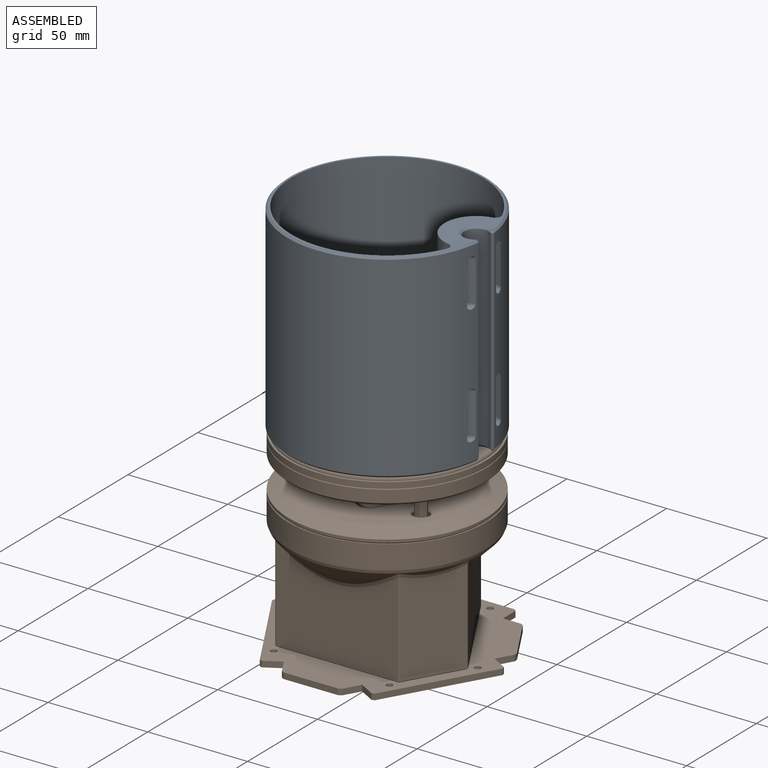
[diagram: assembled view]
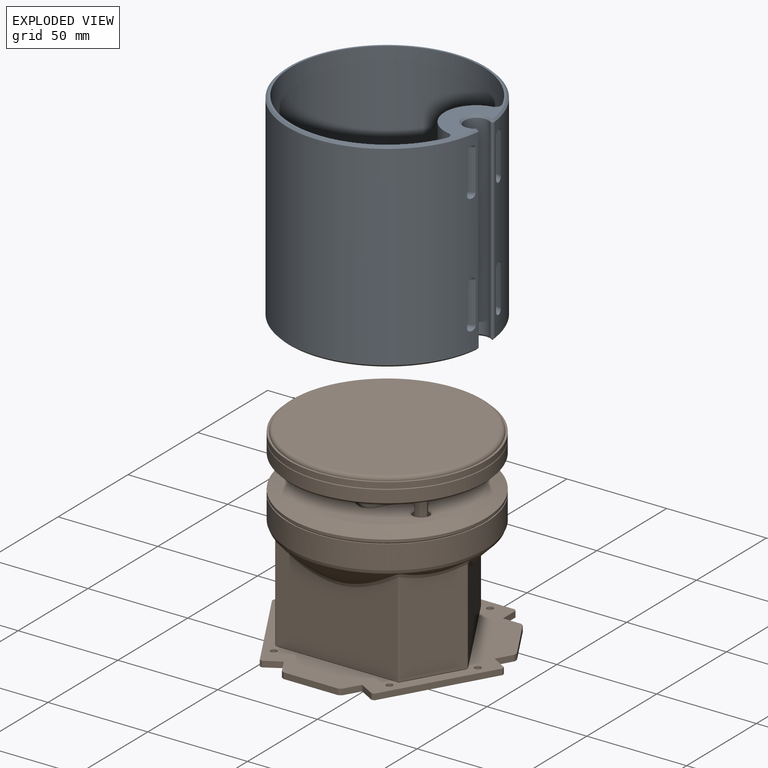
[diagram: exploded view]
GUIDED TOUR — FREECAD ASSEMBLY "beacon_assembled"

This assembly has 2 components, labeled P0..P1 below (a component is one placed body or linked part; the same part can appear more than once), held together by 0 modeled joints plus 1 derived contact edge. A joint is a constraint between two components; its type names the relative motion it leaves free:
  CONTACT — a derived adjacency edge — the two components touch in the source model (clearance under 2% of the assembly's diagonal); it is measured from the geometry, not a modeled constraint.
Axis/direction vectors are unit vectors and 'through' points are millimeter coordinates, both in the assembly's world frame.

MATES
  1. CONTACT "contact_0_1": P0 <-> P1, contact direction (0.000, 0.000, -1.000) through (17.28, 45.44, 96.54) mm (derived from contact, not a modeled constraint)

ASSEMBLY ORDER
  1. P1 — the base component [order verified]
  2. P0 [order verified]
Order-tag legend:
  [order verified] — this step's position reverses a verified removal order: the component was checked to insert without passing through the ones already placed.

Of the 2 components, 2 carry a construction recipe — the FreeCAD feature program (sketches with constraints, then the solid features that consume them) that regenerates the part from scratch, quoted from this document or from the linked companion document it references; the rest are supplied as boundary geometry only. The tour below walks the components in assembly order: each is shown spotlighted twice — in the assembled view, then in the exploded view, where a leader line traces a displaced component back to its assembled socket (components that stay in place when exploded have no leader line; saturated green if recipe-attached, orange if geometry-only; every other component desaturated gray) — followed by its recipe or geometry summary and the mates that hold it.
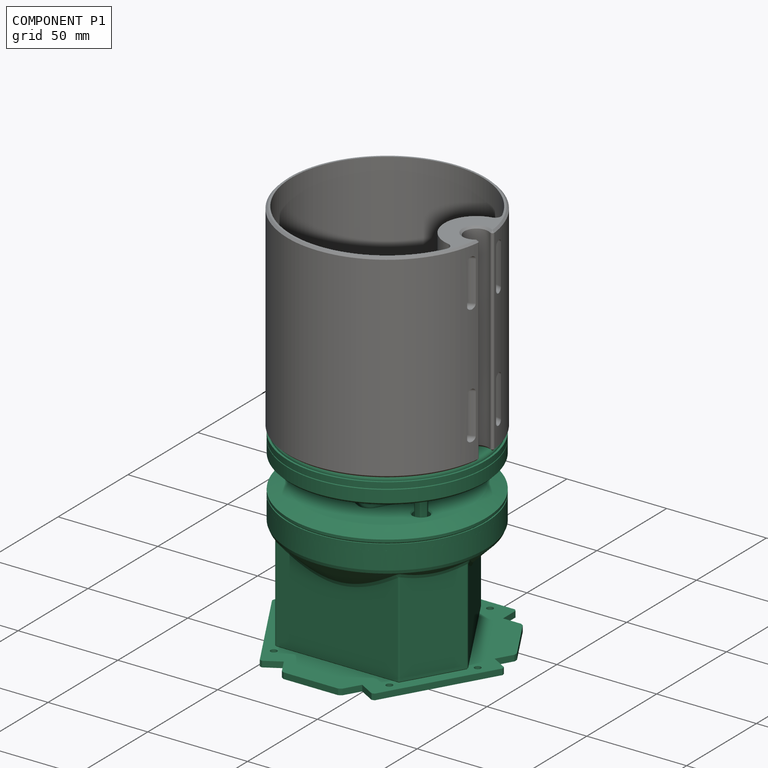
[diagram: component P1 — assembled]
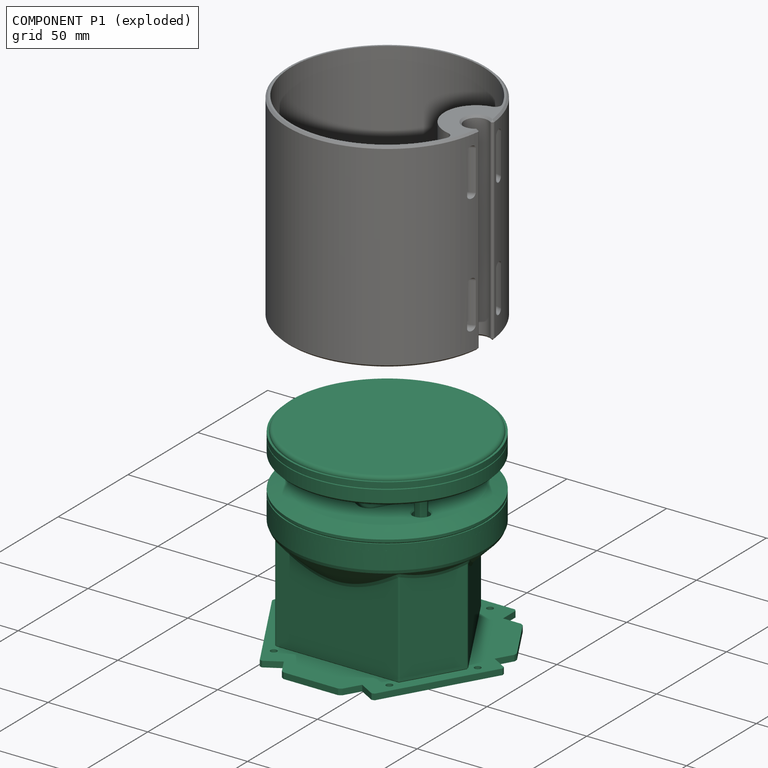
[diagram: component P1 — exploded]
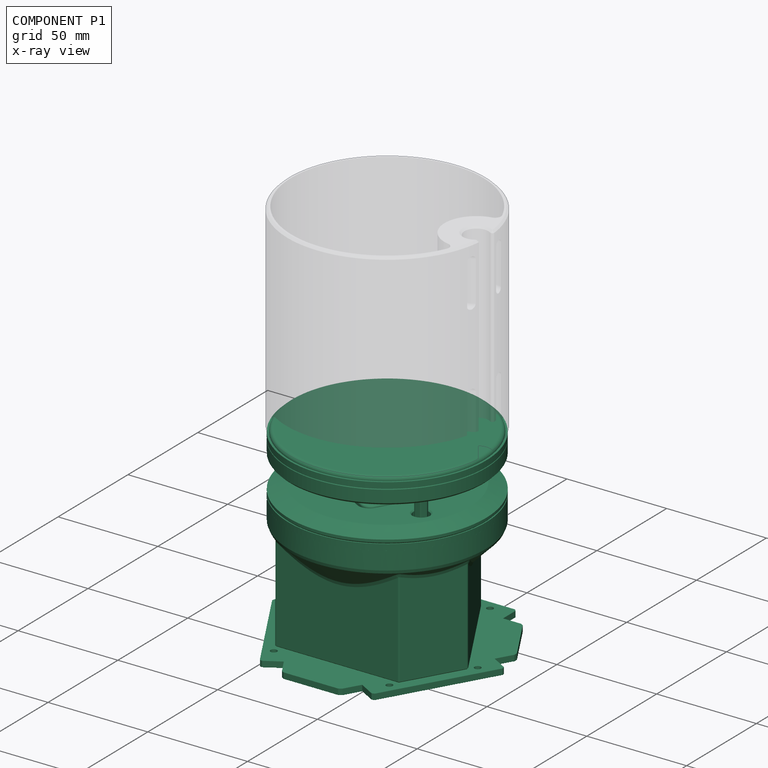
[diagram: component P1 — x-ray view]
COMPONENT P1 — recipe-attached ("BeaconAssembled", modeled in this document).
Held by: resting contact with P0 (derived edge).
Construction recipe (the document's own serialized feature program — sketch geometry with constraints, then the solid features built on it; lengths are millimeters unless a unit is written):

FEATURE [Sketcher::SketchObject] Sketch
  ArcFitTolerance = 0
  AttachmentSupport = -> [XY_Plane]
  ExternalBSplineMaxDegree = 0
  ExternalBSplineTolerance = 0
  FullyConstrained = true
  InternalTolerance = 1e-06
  InvalidShape = false
  MakeInternals = false
  MapMode = 5
  Support = -> [XY_Plane]
  TreeRank = 0
  ValidateShape = true
  sketch-geometry (14):
    g0: LineSegment StartX=0 StartY=0 StartZ=0 EndX=-47.3205 EndY=27.3205 EndZ=0
    g1: LineSegment StartX=-47.3205 StartY=27.3205 StartZ=0 EndX=-54.641 EndY=14.641 EndZ=0
    g2: LineSegment StartX=-54.641 StartY=14.641 StartZ=0 EndX=-49.641 EndY=5.98076 EndZ=0
    g3: LineSegment StartX=-49.641 StartY=5.98076 StartZ=0 EndX=-58.3013 EndY=0.980762 EndZ=0
    g4: LineSegment StartX=-58.3013 StartY=0.980762 StartZ=0 EndX=-28.3013 EndY=-50.9808 EndZ=0
    g5: LineSegment StartX=-28.3013 StartY=-50.9808 StartZ=0 EndX=-19.641 EndY=-45.9808 EndZ=0
    g6: LineSegment StartX=-19.641 StartY=-45.9808 StartZ=0 EndX=-14.641 EndY=-54.641 EndZ=0
    g7: LineSegment StartX=-14.641 StartY=-54.641 StartZ=0 EndX=0 EndY=-54.641 EndZ=0
    g8: LineSegment StartX=0 StartY=-54.641 StartZ=0 EndX=0 EndY=0 EndZ=0
    g9: LineSegment [constr] StartX=-49.641 StartY=5.98076 StartZ=0 EndX=-19.641 EndY=-45.9808 EndZ=0
    g10: LineSegment [constr] StartX=0 StartY=0 StartZ=0 EndX=-43.3013 EndY=-25 EndZ=0
    g11: LineSegment [constr] StartX=-53.9711 StartY=3.48076 StartZ=0 EndX=-23.9711 EndY=-48.4808 EndZ=0
    g12: Circle CenterX=-48.9711 CenterY=-5.17949 CenterZ=0 NormalX=0 NormalY=0 NormalZ=1 AngleXU=0 Radius=1.6
    g13: Circle CenterX=-28.9711 CenterY=-39.8205 CenterZ=0 NormalX=0 NormalY=0 NormalZ=1 AngleXU=0 Radius=1.6
  constraints (39):
    c: Coincident(g0,g-1)
    c: Coincident(g0,g1)
    c: Coincident(g1,g2)
    c: Coincident(g2,g3)
    c: Coincident(g3,g4)
    c: Coincident(g4,g5)
    c: Coincident(g5,g6)
    c: Coincident(g6,g7)
    c: PointOnObject(g7,g-2)
    c: Horizontal(g7)
    c: Coincident(g7,g8)
    c: Coincident(g8,g0)
    c: Equal(g0,g8)
    c: Angle(g0,g8) = 2.0944
    c: Perpendicular(g0,g1)
    c: Equal(g1,g7)
    c: Perpendicular(g3,g2)
    c: Perpendicular(g3,g4)
    c: Perpendicular(g5,g4)
    c: Coincident(g9,g2)
    c: Coincident(g9,g5)
    c: Coincident(g10,g0)
    c: PointOnObject(g10,g4)
    c: Parallel(g2,g9)
    c: Parallel(g9,g6)
    c: Equal(g6,g5)
    c: Distance(g4) = 60
    c: Equal(g3,g2)
    c: Distance(g3) = 10
    c: Perpendicular(g4,g10)
    c: Distance(g0,g9) = 40
    c: PointOnObject(g11,g5)
    c: Symmetric(g3,g2,g11)
    c: PointOnObject(g12,g11)
    c: PointOnObject(g13,g11)
    c: Diameter(g13) = 3.2
    c: Equal(g13,g12)
    c: Symmetric(g13,g12,g10)
    c: Distance(g12,g3) = 10
FEATURE [PartDesign::Pad] Pad
  AddSubType = 0
  AutoTaperInnerAngle = false
  CheckUpToFaceLimits = true
  ClaimChildren = false
  Direction = (0,0,1)
  Fit = 0
  FitJoin = 0
  InnerFit = 0
  InnerFitJoin = 0
  InvalidShape = false
  Length = 3
  Length2 = 100
  Linearize = true
  NewSolid = false
  Profile = -> Sketch
  Refine = true
  Suppress = false
  TaperInnerAngle = 0
  TaperInnerAngleRev = 0
  TreeRank = 0
  Type = 0
  ValidateShape = true
  _ProfileBasedVersion = 1
FEATURE [PartDesign::PolarPattern] PolarPattern
  AddSubType = 0
  Angle = 360
  Axis = -> Sketch [N_Axis]
  BaseFeature = -> Pad
  CopyShape = false
  InvalidShape = false
  NewSolid = false
  Occurrences = 3
  OriginalSubs = -> [Pad]
  Originals = -> [Pad]
  ParallelTransform = true
  Refine = true
  SubTransform = true
  Suppress = false
  TreeRank = 0
  ValidateShape = true
  _Version = 3
FEATURE [Sketcher::SketchObject] Sketch001
  ArcFitTolerance = 0
  AttachmentSupport = -> [XY_Plane]
  ExternalBSplineMaxDegree = 0
  ExternalBSplineTolerance = 0
  ExternalGeometry = -> [PolarPattern]
  FullyConstrained = true
  InternalTolerance = 1e-06
  InvalidShape = false
  MakeInternals = false
  MapMode = 5
  Support = -> [XY_Plane]
  TreeRank = 0
  ValidateShape = true
  sketch-geometry (6):
    g0: LineSegment StartX=-25.6699 StartY=14.8205 StartZ=0 EndX=-34.6699 EndY=-0.767949 EndZ=0
    g1: LineSegment StartX=-34.6699 StartY=-0.767949 StartZ=0 EndX=-18 EndY=-29.641 EndZ=0
    g2: LineSegment StartX=-18 StartY=-29.641 StartZ=0 EndX=2.22791e-11 EndY=-29.641 EndZ=0
    g3: LineSegment StartX=-25.6699 StartY=14.8205 StartZ=0 EndX=3.624e-13 EndY=-1.78e-14 EndZ=0
    g4: LineSegment StartX=3.638e-13 StartY=-1.98e-14 StartZ=0 EndX=2.22776e-11 EndY=-29.641 EndZ=0
    g5: LineSegment [constr] StartX=3.638e-13 StartY=-1.98e-14 StartZ=0 EndX=-47.3205 EndY=27.3205 EndZ=0
  constraints (16):
    c: Coincident(g0,g1)
    c: Coincident(g1,g2)
    c: Horizontal(g2)
    c: Equal(g2,g0)
    c: Coincident(g0,g3)
    c: Coincident(g3,g4)
    c: Coincident(g4,g2)
    c: DistanceX(g2,g2) = 18
    c: DistanceY(g-3,g2) = 25
    c: Parallel(g1,g-4)
    c: Coincident(g5,g3)
    c: Symmetric(g-5,g-5,g5)
    c: PointOnObject(g0,g5)
    c: Equal(g3,g4)
    c: Parallel(g0,g-5)
    c: Coincident(g3,g-1)
FEATURE [PartDesign::Pocket] Pocket
  AddSubType = 1
  AutoTaperInnerAngle = false
  BaseFeature = -> PolarPattern
  CheckUpToFaceLimits = true
  ClaimChildren = false
  Direction = (1,1,1)
  Fit = 0
  FitJoin = 0
  InnerFit = 0
  InnerFitJoin = 0
  InvalidShape = false
  Length = 5
  Length2 = 100
  Linearize = true
  NewSolid = false
  Profile = -> Sketch001
  Refine = true
  Reversed = true
  Suppress = false
  TaperInnerAngle = 0
  TaperInnerAngleRev = 0
  TreeRank = 0
  Type = 1
  ValidateShape = true
  _ProfileBasedVersion = 1
  _Version = 1
FEATURE [PartDesign::PolarPattern] PolarPattern001
  AddSubType = 0
  Angle = 360
  Axis = -> Sketch001 [N_Axis]
  BaseFeature = -> Pocket
  CopyShape = false
  InvalidShape = false
  NewSolid = false
  Occurrences = 3
  OriginalSubs = -> [Pocket]
  Originals = -> [Pocket]
  ParallelTransform = true
  Refine = true
  SubTransform = true
  Suppress = false
  TreeRank = 0
  ValidateShape = true
  _Version = 3
FEATURE [PartDesign::Chamfer] Chamfer
  AddSubType = 0
  Angle = 45
  Base = -> PolarPattern001 [Edge1,Edge6,Edge73,Edge74,Edge77,Edge79,Edge83,Edge84,Edge80,Edge78,Edge72,Edge8]
  BaseFeature = -> PolarPattern001
  ChamferType = 0
  FlipDirection = false
  InvalidShape = false
  NewSolid = false
  Refine = true
  Size = 1
  Size2 = 1
  SupportTransform = false
  Suppress = false
  TreeRank = 0
  UseAllEdges = false
  ValidateShape = true
FEATURE [PartDesign::Fillet] Fillet
  AddSubType = 0
  Base = -> Chamfer [Edge123,Edge127,Edge128,Edge126,Edge125,Edge124]
  BaseFeature = -> Chamfer
  InvalidShape = false
  NewSolid = false
  Radius = 3
  Refine = true
  SupportTransform = false
  Suppress = false
  TreeRank = 0
  UseAllEdges = false
  ValidateShape = true
FEATURE [Sketcher::SketchObject] Sketch002
  ArcFitTolerance = 0
  AttachmentSupport = -> [XY_Plane001]
  ExternalBSplineMaxDegree = 0
  ExternalBSplineTolerance = 0
  FullyConstrained = true
  InternalTolerance = 1e-06
  InvalidShape = false
  MakeInternals = false
  MapMode = 5
  Support = -> [XY_Plane001]
  TreeRank = 0
  ValidateShape = true
  sketch-geometry (1):
    g0: Circle CenterX=0 CenterY=0 CenterZ=0 NormalX=0 NormalY=0 NormalZ=1 AngleXU=0 Radius=50
  constraints (2):
    c: Coincident(g0,g-1)
    c: Diameter(g0) = 100
FEATURE [PartDesign::Pad] Pad001
  AddSubType = 0
  AutoTaperInnerAngle = false
  CheckUpToFaceLimits = true
  ClaimChildren = false
  Direction = (0,0,1)
  Fit = 0
  FitJoin = 0
  InnerFit = 0
  InnerFitJoin = 0
  InvalidShape = false
  Length = 80
  Length2 = 100
  Linearize = true
  NewSolid = false
  Profile = -> Sketch002
  Refine = true
  Suppress = false
  TaperInnerAngle = 0
  TaperInnerAngleRev = 0
  TreeRank = 0
  Type = 0
  ValidateShape = true
  _ProfileBasedVersion = 1
FEATURE [PartDesign::Body] Body001  label="MaxSizeCylinder"
  AutoGroupSolids = false
  ClaimAllChildren = false
  ExportMode = 0
  Group = -> [Sketch002,Pad001]
  InvalidShape = false
  Origin = -> Origin002
  Placement = pos=(0,-2.02656e-06,17) rot=(0,0,1;0rad)
  SingleSolid = true
  Tip = -> Pad001
  TreeRank = 0
  ValidateShape = true
  _ExportChildren = -> [Pad001]
  _GroupVersion = 1
FEATURE [Sketcher::SketchObject] Sketch003
  ArcFitTolerance = 0
  AttachmentSupport = -> [XY_Plane002]
  ExternalBSplineMaxDegree = 0
  ExternalBSplineTolerance = 0
  FullyConstrained = true
  InternalTolerance = 1e-06
  InvalidShape = false
  MakeInternals = false
  MapMode = 5
  Support = -> [XY_Plane002]
  TreeRank = 0
  ValidateShape = true
  sketch-geometry (4):
    g0: LineSegment StartX=-50 StartY=50 StartZ=0 EndX=50 EndY=50 EndZ=0
    g1: LineSegment StartX=50 StartY=50 StartZ=0 EndX=50 EndY=-50 EndZ=0
    g2: LineSegment StartX=50 StartY=-50 StartZ=0 EndX=-50 EndY=-50 EndZ=0
    g3: LineSegment StartX=-50 StartY=-50 StartZ=0 EndX=-50 EndY=50 EndZ=0
  constraints (11):
    c: Coincident(g0,g1)
    c: Coincident(g1,g2)
    c: Coincident(g2,g3)
    c: Coincident(g3,g0)
    c: Horizontal(g0)
    c: Horizontal(g2)
    c: Vertical(g1)
    c: Vertical(g3)
    c: Symmetric(g1,g0,g-1)
    c: Equal(g0,g1)
    c: DistanceX(g0,g0) = 100
FEATURE [PartDesign::Pad] Pad002
  AddSubType = 0
  AutoTaperInnerAngle = false
  CheckUpToFaceLimits = true
  ClaimChildren = false
  Direction = (0,0,1)
  Fit = 0
  FitJoin = 0
  InnerFit = 0
  InnerFitJoin = 0
  InvalidShape = false
  Length = 80
  Length2 = 100
  Linearize = true
  NewSolid = false
  Profile = -> Sketch003
  Refine = true
  Suppress = false
  TaperInnerAngle = 0
  TaperInnerAngleRev = 0
  TreeRank = 0
  Type = 0
  ValidateShape = true
  _ProfileBasedVersion = 1
FEATURE [PartDesign::Body] Body002  label="MaxSizeRectangle"
  AutoGroupSolids = false
  ClaimAllChildren = false
  ExportMode = 0
  Group = -> [Sketch003,Pad002]
  InvalidShape = false
  Origin = -> Origin003
  Placement = pos=(0,0,17) rot=(0,0,1;0rad)
  SingleSolid = true
  Tip = -> Pad002
  TreeRank = 0
  ValidateShape = true
  _ExportChildren = -> [Pad002]
  _GroupVersion = 1
FEATURE [Sketcher::SketchObject] Sketch007
  ArcFitTolerance = 0
  AttachmentSupport = -> [XY_Plane005]
  ExternalBSplineMaxDegree = 0
  ExternalBSplineTolerance = 0
  FullyConstrained = true
  InternalTolerance = 1e-06
  InvalidShape = false
  MakeInternals = false
  MapMode = 5
  Support = -> [XY_Plane005]
  TreeRank = 0
  ValidateShape = true
  sketch-geometry (1):
    g0: Circle CenterX=0 CenterY=0 CenterZ=0 NormalX=0 NormalY=0 NormalZ=1 AngleXU=0 Radius=150
  constraints (2):
    c: Coincident(g0,g-1)
    c: Diameter(g0) = 300
FEATURE [PartDesign::Pad] Pad003
  AddSubType = 0
  AutoTaperInnerAngle = false
  CheckUpToFaceLimits = true
  ClaimChildren = false
  Direction = (0,0,1)
  Fit = 0
  FitJoin = 0
  InnerFit = 0
  InnerFitJoin = 0
  InvalidShape = false
  Length = 350
  Length2 = 100
  Linearize = true
  NewSolid = false
  Profile = -> Sketch007
  Refine = true
  Reversed = true
  Suppress = false
  TaperInnerAngle = 0
  TaperInnerAngleRev = 0
  TreeRank = 0
  Type = 0
  ValidateShape = true
  _ProfileBasedVersion = 1
FEATURE [PartDesign::Body] Body005  label="MaxRobotSizeCylinder"
  AutoGroupSolids = false
  ClaimAllChildren = false
  ExportMode = 0
  Group = -> [Sketch007,Pad003]
  InvalidShape = false
  Origin = -> Origin008
  Placement = pos=(0,-2.02656e-06,17) rot=(0,0,1;0rad)
  SingleSolid = true
  Tip = -> Pad003
  TreeRank = 0
  ValidateShape = true
  _ExportChildren = -> [Pad003]
  _GroupVersion = 1
FEATURE [Sketcher::SketchObject] Sketch008
  ArcFitTolerance = 0
  AttachmentSupport = -> [XY_Plane006]
  ExternalBSplineMaxDegree = 0
  ExternalBSplineTolerance = 0
  FullyConstrained = true
  InternalTolerance = 1e-06
  InvalidShape = false
  MakeInternals = false
  MapMode = 5
  Support = -> [XY_Plane006]
  TreeRank = 0
  ValidateShape = true
  sketch-geometry (4):
    g0: LineSegment StartX=-150 StartY=150 StartZ=0 EndX=150 EndY=150 EndZ=0
    g1: LineSegment StartX=150 StartY=150 StartZ=0 EndX=150 EndY=-150 EndZ=0
    g2: LineSegment StartX=150 StartY=-150 StartZ=0 EndX=-150 EndY=-150 EndZ=0
    g3: LineSegment StartX=-150 StartY=-150 StartZ=0 EndX=-150 EndY=150 EndZ=0
  constraints (11):
    c: Coincident(g0,g1)
    c: Coincident(g1,g2)
    c: Coincident(g2,g3)
    c: Coincident(g3,g0)
    c: Horizontal(g0)
    c: Horizontal(g2)
    c: Vertical(g1)
    c: Vertical(g3)
    c: Symmetric(g1,g0,g-1)
    c: Equal(g0,g3)
    c: DistanceX(g0,g0) = 300
FEATURE [PartDesign::Pad] Pad004
  AddSubType = 0
  AutoTaperInnerAngle = false
  CheckUpToFaceLimits = true
  ClaimChildren = false
  Direction = (0,0,1)
  Fit = 0
  FitJoin = 0
  InnerFit = 0
  InnerFitJoin = 0
  InvalidShape = false
  Length = 350
  Length2 = 100
  Linearize = true
  NewSolid = false
  Profile = -> Sketch008
  Refine = true
  Reversed = true
  Suppress = false
  TaperInnerAngle = 0
  TaperInnerAngleRev = 0
  TreeRank = 0
  Type = 0
  ValidateShape = true
  _ProfileBasedVersion = 1
FEATURE [PartDesign::Body] Body006  label="MaxRobotSizeRectangle"
  AutoGroupSolids = false
  ClaimAllChildren = false
  ExportMode = 0
  Group = -> [Sketch008,Pad004]
  InvalidShape = false
  Origin = -> Origin009
  Placement = pos=(0,-2.02656e-06,17) rot=(0,0,1;0rad)
  SingleSolid = true
  Tip = -> Pad004
  TreeRank = 0
  ValidateShape = true
  _ExportChildren = -> [Pad004]
  _GroupVersion = 1
FEATURE [Sketcher::SketchObject] Sketch020
  ArcFitTolerance = 0
  AttachmentSupport = -> [XY_Plane012]
  ExternalBSplineMaxDegree = 0
  ExternalBSplineTolerance = 0
  FullyConstrained = true
  InternalTolerance = 1e-06
  InvalidShape = false
  MakeInternals = false
  MapMode = 5
  Support = -> [XY_Plane012]
  TreeRank = 99
  ValidateShape = true
  sketch-geometry (1):
    g0: Circle CenterX=0 CenterY=0 CenterZ=0 NormalX=0 NormalY=0 NormalZ=1 AngleXU=0 Radius=35
  constraints (2):
    c: Coincident(g0,g-1)
    c: Diameter(g0) = 70
FEATURE [PartDesign::Pad] Pad014
  AddSubType = 0
  AlongSketchNormal = false
  AutoTaperInnerAngle = false
  CheckUpToFaceLimits = true
  ClaimChildren = false
  Direction = (0,0,1)
  Fit = 0
  FitJoin = 0
  InnerFit = 0
  InnerFitJoin = 0
  InvalidShape = false
  Length = 80
  Length2 = 100
  Linearize = true
  NewSolid = false
  Profile = -> Sketch020
  Refine = true
  Suppress = false
  TaperInnerAngle = 0
  TaperInnerAngleRev = 0
  TreeRank = 100
  Type = 0
  ValidateShape = true
  _ProfileBasedVersion = 1
FEATURE [PartDesign::Body] Body012  label="MinSizeCylinder"
  AutoGroupSolids = false
  ClaimAllChildren = false
  ExportMode = 0
  Group = -> [Sketch020,Pad014]
  InvalidShape = false
  Origin = -> Origin016
  Placement = pos=(0,0,17) rot=(0,0,1;0rad)
  SingleSolid = true
  Tip = -> Pad014
  TreeRank = 98
  ValidateShape = true
  _ExportChildren = -> [Pad014]
  _GroupVersion = 1
FEATURE [Sketcher::SketchObject] Sketch042
  ArcFitTolerance = 0
  AttachmentSupport = -> [XY_Plane024]
  ExternalBSplineMaxDegree = 0
  ExternalBSplineTolerance = 0
  FullyConstrained = true
  InternalTolerance = 1e-06
  InvalidShape = false
  MakeInternals = false
  MapMode = 5
  Support = -> [XY_Plane024]
  TreeRank = 402
  ValidateShape = true
  sketch-geometry (9):
    g0: LineSegment StartX=-15.683 StartY=44.8363 StartZ=0 EndX=15.683 EndY=44.8363 EndZ=0
    g1: Circle [constr] CenterX=-4.0211e-12 CenterY=3.5659e-12 CenterZ=0 NormalX=0 NormalY=0 NormalZ=1 AngleXU=0 Radius=47.5
    g2: Circle [constr] CenterX=-4.0211e-12 CenterY=3.5659e-12 CenterZ=0 NormalX=0 NormalY=0 NormalZ=1 AngleXU=0 Radius=36
    g3: LineSegment StartX=-15.683 StartY=44.8363 StartZ=0 EndX=-46.6709 EndY=-8.83631 EndZ=0
    g4: LineSegment StartX=-46.6709 StartY=-8.83631 StartZ=0 EndX=-30.9879 EndY=-36 EndZ=0
    g5: LineSegment StartX=-30.9879 StartY=-36 StartZ=0 EndX=30.9879 EndY=-36 EndZ=0
    g6: LineSegment StartX=30.9879 StartY=-36 StartZ=0 EndX=46.6709 EndY=-8.83631 EndZ=0
    g7: LineSegment StartX=46.6709 StartY=-8.83631 StartZ=0 EndX=15.683 EndY=44.8363 EndZ=0
    g8: LineSegment [constr] StartX=-4.0211e-12 StartY=3.5659e-12 StartZ=0 EndX=-38.8294 EndY=-22.4182 EndZ=0
  constraints (25):
    c: Horizontal(g0)
    c: PointOnObject(g0,g1)
    c: Diameter(g1) = 95
    c: PointOnObject(g0,g1)
    c: Diameter(g2) = 72
    c: Coincident(g3,g0)
    c: PointOnObject(g3,g1)
    c: Coincident(g2,g1)
    c: Coincident(g2,g-1)
    c: Coincident(g4,g3)
    c: PointOnObject(g4,g1)
    c: Coincident(g5,g4)
    c: PointOnObject(g5,g1)
    c: Horizontal(g5)
    c: Coincident(g6,g5)
    c: PointOnObject(g6,g1)
    c: Coincident(g7,g6)
    c: Coincident(g7,g0)
    c: Equal(g0,g4)
    c: Equal(g4,g6)
    c: Equal(g7,g5)
    c: Coincident(g8,g2)
    c: PointOnObject(g8,g4)
    c: Perpendicular(g4,g8)
    c: Tangent(g5,g2)
FEATURE [PartDesign::Pad] Pad026
  AddSubType = 0
  AlongSketchNormal = false
  AutoTaperInnerAngle = false
  CheckUpToFaceLimits = true
  ClaimChildren = false
  Direction = (0,0,1)
  Fit = 0
  FitJoin = 0
  InnerFit = 0
  InnerFitJoin = 0
  InvalidShape = false
  Length = 61
  Length2 = 100
  Linearize = true
  NewSolid = false
  Profile = -> Sketch042
  Refine = true
  Suppress = false
  TaperInnerAngle = 0
  TaperInnerAngleRev = 0
  TreeRank = 403
  Type = 0
  ValidateShape = true
  _ProfileBasedVersion = 1
FEATURE [Sketcher::SketchObject] Sketch043
  ArcFitTolerance = 0
  AttachmentSupport = -> [YZ_Plane024]
  ExternalBSplineMaxDegree = 0
  ExternalBSplineTolerance = 0
  ExternalGeometry = -> [Pad026]
  FullyConstrained = true
  InternalTolerance = 1e-06
  InvalidShape = false
  MakeInternals = false
  MapMode = 5
  Placement = pos=(0,0,0) rot=(0.57735,0.57735,0.57735;2.0944rad)
  Support = -> [YZ_Plane024]
  TreeRank = 404
  ValidateShape = true
  sketch-geometry (5):
    g0: LineSegment StartX=-3.572e-13 StartY=61 StartZ=0 EndX=49.5 EndY=61 EndZ=0
    g1: LineSegment StartX=49.5 StartY=61 StartZ=0 EndX=49.5 EndY=51 EndZ=0
    g2: LineSegment StartX=49.5 StartY=51 StartZ=0 EndX=20 EndY=21.5 EndZ=0
    g3: LineSegment StartX=-2.9e-14 StartY=21.5 StartZ=0 EndX=20 EndY=21.5 EndZ=0
    g4: LineSegment StartX=-2.9e-14 StartY=21.5 StartZ=0 EndX=-3.572e-13 EndY=61 EndZ=0
  constraints (15):
    c: PointOnObject(g0,g-2)
    c: Horizontal(g0)
    c: Coincident(g1,g0)
    c: Coincident(g2,g1)
    c: PointOnObject(g3,g-2)
    c: Coincident(g3,g2)
    c: Horizontal(g3)
    c: Coincident(g4,g0)
    c: Coincident(g3,g4)
    c: Vertical(g1)
    c: PointOnObject(g-3,g0)
    c: DistanceY(g1,g1) = 10
    c: Angle(g1,g2) = 2.35619
    c: DistanceX(g0,g0) = 49.5
    c: DistanceX(g3,g3) = 20
FEATURE [PartDesign::Revolution] Revolution004
  AddSubType = 0
  Angle = 360
  Axis = (-2e-16,3e-16,1)
  Base = (0,0,0)
  BaseFeature = -> Pad026
  ClaimChildren = false
  Fit = 0
  FitJoin = 0
  InnerFit = 0
  InnerFitJoin = 0
  InvalidShape = false
  Linearize = true
  NewSolid = false
  Profile = -> Sketch043
  ReferenceAxis = -> Sketch043 [V_Axis]
  Refine = true
  Reversed = true
  Suppress = false
  TreeRank = 405
  ValidateShape = true
  _ProfileBasedVersion = 1
FEATURE [Sketcher::SketchObject] Sketch044
  ArcFitTolerance = 0
  AttachmentSupport = -> [Revolution004]
  ExternalBSplineMaxDegree = 0
  ExternalBSplineTolerance = 0
  FullyConstrained = true
  InternalTolerance = 1e-06
  InvalidShape = false
  MakeInternals = false
  MapMode = 5
  Placement = pos=(-1.34e-14,1.71e-14,61) rot=(0,0,1;0rad)
  Support = -> [Revolution004]
  TreeRank = 406
  ValidateShape = true
  sketch-geometry (2):
    g0: Circle CenterX=0 CenterY=0 CenterZ=0 NormalX=0 NormalY=0 NormalZ=1 AngleXU=0 Radius=48.25
    g1: Circle CenterX=0 CenterY=0 CenterZ=0 NormalX=0 NormalY=0 NormalZ=1 AngleXU=0 Radius=37.5
  constraints (4):
    c: Coincident(g0,g-1)
    c: Coincident(g1,g0)
    c: Diameter(g0) = 96.5
    c: Diameter(g1) = 75
FEATURE [PartDesign::Pocket] Pocket019
  AddSubType = 1
  AutoTaperInnerAngle = false
  BaseFeature = -> Revolution004
  CheckUpToFaceLimits = true
  ClaimChildren = false
  Direction = (1,1,1)
  Fit = 0
  FitJoin = 0
  InnerFit = 0
  InnerFitJoin = 0
  InvalidShape = false
  Length = 5
  Length2 = 100
  Linearize = true
  NewSolid = false
  Profile = -> Sketch044
  Refine = true
  Suppress = false
  TaperInnerAngle = 0
  TaperInnerAngleRev = 0
  TreeRank = 407
  Type = 0
  ValidateShape = true
  _ProfileBasedVersion = 1
  _Version = 1
FEATURE [Sketcher::SketchObject] Sketch045
  ArcFitTolerance = 0
  AttachmentSupport = -> [Pocket019]
  ExternalBSplineMaxDegree = 0
  ExternalBSplineTolerance = 0
  FullyConstrained = true
  InternalTolerance = 1e-06
  InvalidShape = false
  MakeInternals = false
  MapMode = 5
  Placement = pos=(-1.34e-14,1.71e-14,61) rot=(0,0,1;0rad)
  Support = -> [Pocket019]
  TreeRank = 408
  ValidateShape = true
  sketch-geometry (6):
    g0: Circle CenterX=-6.97e-14 CenterY=33 CenterZ=0 NormalX=0 NormalY=0 NormalZ=1 AngleXU=0 Radius=2.1
    g1: Circle CenterX=28.5788 CenterY=-16.5 CenterZ=0 NormalX=0 NormalY=0 NormalZ=1 AngleXU=0 Radius=2.1
    g2: Circle CenterX=-28.5788 CenterY=-16.5 CenterZ=0 NormalX=0 NormalY=0 NormalZ=1 AngleXU=0 Radius=2.1
    g3: LineSegment [constr] StartX=-28.5788 StartY=-16.5 StartZ=0 EndX=4.26e-14 EndY=-1.279e-13 EndZ=0
    g4: LineSegment [constr] StartX=4.18e-14 StartY=-1.265e-13 StartZ=0 EndX=28.5788 EndY=-16.5 EndZ=0
    g5: LineSegment [constr] StartX=4.18e-14 StartY=-1.265e-13 StartZ=0 EndX=-6.97e-14 EndY=33 EndZ=0
  constraints (15):
    c: PointOnObject(g0,g-2)
    c: Coincident(g3,g2)
    c: Coincident(g3,g-1)
    c: Coincident(g4,g3)
    c: Coincident(g4,g1)
    c: Coincident(g5,g3)
    c: Coincident(g5,g0)
    c: Equal(g2,g1)
    c: Equal(g2,g0)
    c: Diameter(g2) = 4.2
    c: Equal(g3,g4)
    c: Equal(g4,g5)
    c: Angle(g4,g5) = 2.0944
    c: Angle(g5,g3) = 2.0944
    c: DistanceY(g5,g5) = 33
FEATURE [PartDesign::Pocket] Pocket020
  AddSubType = 1
  AutoTaperInnerAngle = false
  BaseFeature = -> Pocket019
  CheckUpToFaceLimits = true
  ClaimChildren = false
  Direction = (1,1,1)
  Fit = 0
  FitJoin = 0
  InnerFit = 0
  InnerFitJoin = 0
  InvalidShape = false
  Length = 12
  Length2 = 100
  Linearize = true
  NewSolid = false
  Profile = -> Sketch045
  Refine = true
  Suppress = false
  TaperInnerAngle = 0
  TaperInnerAngleRev = 0
  TreeRank = 409
  Type = 1
  ValidateShape = true
  _ProfileBasedVersion = 1
  _Version = 1
FEATURE [Sketcher::SketchObject] Sketch046
  ArcFitTolerance = 0
  AttachmentSupport = -> [XY_Plane025]
  ExternalBSplineMaxDegree = 0
  ExternalBSplineTolerance = 0
  FullyConstrained = true
  InternalTolerance = 1e-06
  InvalidShape = false
  MakeInternals = false
  MapMode = 5
  Support = -> [XY_Plane025]
  TreeRank = 422
  ValidateShape = true
  sketch-geometry (12):
    g0: Circle CenterX=-1.6806e-12 CenterY=-6.0018e-12 CenterZ=0 NormalX=0 NormalY=0 NormalZ=1 AngleXU=0 Radius=49.5
    g1: LineSegment StartX=-27.3205 StartY=-7.32051 StartZ=0 EndX=-7.32051 EndY=27.3205 EndZ=0
    g2: LineSegment StartX=-7.32051 StartY=27.3205 StartZ=0 EndX=27.3205 EndY=7.32051 EndZ=0
    g3: LineSegment StartX=27.3205 StartY=7.32051 StartZ=0 EndX=7.32051 EndY=-27.3205 EndZ=0
    g4: LineSegment StartX=7.32051 StartY=-27.3205 StartZ=0 EndX=-27.3205 EndY=-7.32051 EndZ=0
    g5: GeomPoint [constr] X=-1.6806e-12 Y=-6.0018e-12 Z=0
    g6: Circle CenterX=1.962e-13 CenterY=33 CenterZ=0 NormalX=0 NormalY=0 NormalZ=1 AngleXU=0 Radius=1.6
    g7: Circle CenterX=28.5788 CenterY=-16.5 CenterZ=0 NormalX=0 NormalY=0 NormalZ=1 AngleXU=0 Radius=1.6
    g8: Circle CenterX=-28.5788 CenterY=-16.5 CenterZ=0 NormalX=0 NormalY=0 NormalZ=1 AngleXU=0 Radius=1.6
    g9: LineSegment [constr] StartX=-28.5788 StartY=-16.5 StartZ=0 EndX=-1.6804e-12 EndY=-6.0005e-12 EndZ=0
    g10: LineSegment [constr] StartX=-1.6806e-12 StartY=-6.0018e-12 StartZ=0 EndX=28.5788 EndY=-16.5 EndZ=0
    g11: LineSegment [constr] StartX=-1.6806e-12 StartY=-6.0018e-12 StartZ=0 EndX=1.962e-13 EndY=33 EndZ=0
  constraints (29):
    c: Coincident(g0,g-1)
    c: Diameter(g0) = 99
    c: Coincident(g1,g2)
    c: Coincident(g2,g3)
    c: Coincident(g3,g4)
    c: Coincident(g4,g1)
    c: Parallel(g2,g4)
    c: Parallel(g1,g3)
    c: Symmetric(g2,g1,g5)
    c: Coincident(g5,g0)
    c: Perpendicular(g1,g2)
    c: Equal(g3,g2)
    c: Angle(g-2,g4) = 1.0472
    c: Distance(g3) = 40
    c: PointOnObject(g6,g-2)
    c: Equal(g8,g6)
    c: Equal(g8,g7)
    c: Diameter(g8) = 3.2
    c: DistanceY(g0,g6) = 33
    c: Coincident(g9,g8)
    c: Coincident(g9,g0)
    c: Coincident(g10,g0)
    c: Coincident(g10,g7)
    c: Coincident(g11,g0)
    c: Coincident(g11,g6)
    c: Equal(g9,g10)
    c: Equal(g10,g11)
    c: Angle(g10,g11) = 2.0944
    c: Angle(g11,g9) = 2.0944
FEATURE [PartDesign::Pad] Pad027
  AddSubType = 0
  AlongSketchNormal = false
  AutoTaperInnerAngle = false
  CheckUpToFaceLimits = true
  ClaimChildren = false
  Direction = (0,0,1)
  Fit = 0
  FitJoin = 0
  InnerFit = 0
  InnerFitJoin = 0
  InvalidShape = false
  Length = 3
  Length2 = 100
  Linearize = true
  NewSolid = false
  Profile = -> Sketch046
  Refine = true
  Suppress = false
  TaperInnerAngle = 0
  TaperInnerAngleRev = 0
  TreeRank = 423
  Type = 0
  ValidateShape = true
  _ProfileBasedVersion = 1
FEATURE [PartDesign::Fillet] Fillet011
  AddSubType = 0
  Base = -> Pad027 [Edge4,Edge11,Edge8,Edge5]
  BaseFeature = -> Pad027
  InvalidShape = false
  NewSolid = false
  Radius = 5
  Refine = true
  SupportTransform = false
  Suppress = false
  TreeRank = 424
  UseAllEdges = false
  ValidateShape = true
FEATURE [PartDesign::Body] Body024  label="PlaqueDiffuse2023"
  AutoGroupSolids = false
  ClaimAllChildren = false
  ExportMode = 0
  Group = -> [Sketch046,Pad027,Fillet011]
  InvalidShape = false
  Origin = -> Origin032
  Placement = pos=(0,0,64) rot=(0,0,1;0rad)
  SingleSolid = true
  Tip = -> Fillet011
  TreeRank = 419
  ValidateShape = true
  _ExportChildren = -> [Pad027,Fillet011]
  _GroupVersion = 1
FEATURE [Sketcher::SketchObject] Sketch047
  ArcFitTolerance = 0
  AttachmentSupport = -> [Pocket020]
  ExternalBSplineMaxDegree = 0
  ExternalBSplineTolerance = 0
  ExternalGeometry = -> [Pocket020]
  FullyConstrained = true
  InternalTolerance = 1e-06
  InvalidShape = false
  MakeInternals = false
  MapMode = 5
  Placement = pos=(-1.34e-14,1.71e-14,61) rot=(0,0,1;0rad)
  Support = -> [Pocket020]
  TreeRank = 425
  ValidateShape = true
  sketch-geometry (6):
    g0: ArcOfCircle CenterX=5.9282e-12 CenterY=33 CenterZ=0 NormalX=0 NormalY=0 NormalZ=1 AngleXU=0 Radius=5 StartAngle=3.21742 EndAngle=6.20736
    g1: ArcOfCircle CenterX=-28.5788 CenterY=-16.5 CenterZ=0 NormalX=0 NormalY=0 NormalZ=1 AngleXU=0 Radius=5 StartAngle=5.31182 EndAngle=8.30175
    g2: ArcOfCircle CenterX=28.5788 CenterY=-16.5 CenterZ=0 NormalX=0 NormalY=0 NormalZ=1 AngleXU=0 Radius=5 StartAngle=1.12303 EndAngle=4.11296
    g3: ArcOfCircle CenterX=1.58681e-11 CenterY=6.06976e-11 CenterZ=0 NormalX=0 NormalY=0 NormalZ=1 AngleXU=0 Radius=33 StartAngle=1.72246 EndAngle=3.51353
    g4: ArcOfCircle CenterX=1.58681e-11 CenterY=6.06976e-11 CenterZ=0 NormalX=0 NormalY=0 NormalZ=1 AngleXU=0 Radius=33 StartAngle=5.91125 EndAngle=7.70232
    g5: ArcOfCircle CenterX=1.58681e-11 CenterY=6.06976e-11 CenterZ=0 NormalX=0 NormalY=0 NormalZ=1 AngleXU=0 Radius=33 StartAngle=3.81685 EndAngle=5.60793
  constraints (18):
    c: Coincident(g0,g-3)
    c: Coincident(g1,g-5)
    c: Coincident(g2,g-4)
    c: Coincident(g3,g-1)
    c: Coincident(g3,g1)
    c: Coincident(g3,g0)
    c: Coincident(g4,g3)
    c: Coincident(g4,g0)
    c: Coincident(g4,g2)
    c: Coincident(g5,g3)
    c: Coincident(g5,g1)
    c: Coincident(g5,g2)
    c: Equal(g3,g4)
    c: Equal(g4,g5)
    c: Equal(g0,g2)
    c: Equal(g2,g1)
    c: Radius(g4) = 33
    c: Radius(g2) = 5
FEATURE [PartDesign::Pocket] Pocket021
  AddSubType = 1
  AutoTaperInnerAngle = false
  BaseFeature = -> Pocket020
  CheckUpToFaceLimits = true
  ClaimChildren = false
  Direction = (1,1,1)
  Fit = 0
  FitJoin = 0
  InnerFit = 0
  InnerFitJoin = 0
  InvalidShape = false
  Length = 15.7
  Length2 = 100
  Linearize = true
  NewSolid = false
  Profile = -> Sketch047
  Refine = true
  Suppress = false
  TaperInnerAngle = 0
  TaperInnerAngleRev = 0
  TreeRank = 426
  Type = 0
  ValidateShape = true
  _ProfileBasedVersion = 1
  _Version = 1
FEATURE [PartDesign::Fillet] Fillet012
  AddSubType = 0
  Base = -> Pocket021 [Edge46,Edge43,Edge52,Edge48,Edge50,Edge44]
  BaseFeature = -> Pocket021
  InvalidShape = false
  NewSolid = false
  Radius = 3
  Refine = true
  SupportTransform = false
  Suppress = false
  TreeRank = 427
  UseAllEdges = false
  ValidateShape = true
FEATURE [Sketcher::SketchObject] Sketch049
  ArcFitTolerance = 0
  AttachmentSupport = -> [XY_Plane024]
  ExternalBSplineMaxDegree = 0
  ExternalBSplineTolerance = 0
  FullyConstrained = true
  InternalTolerance = 1e-06
  InvalidShape = false
  MakeInternals = false
  MapMode = 5
  Placement = pos=(0,0,0) rot=(0,1,0;3.14159rad)
  Support = -> [XY_Plane024]
  TreeRank = 451
  ValidateShape = true
FEATURE [Sketcher::SketchObject] Sketch052
  ArcFitTolerance = 0
  AttachmentOffset = pos=(0,0,0) rot=(0,1,0;-2.0944rad)
  AttachmentSupport = -> [XZ_Plane024]
  ExternalBSplineMaxDegree = 0
  ExternalBSplineTolerance = 0
  FullyConstrained = true
  InternalTolerance = 1e-06
  InvalidShape = false
  MakeInternals = false
  MapMode = 5
  Placement = pos=(0,0,0) rot=(-0.377964,0.654654,0.654654;3.86433rad)
  Support = -> [XZ_Plane024]
  TreeRank = 459
  ValidateShape = true
  sketch-geometry (19):
    g0: LineSegment StartX=-18 StartY=5.6 StartZ=0 EndX=-18 EndY=29.4 EndZ=0
    g1: LineSegment StartX=-18 StartY=29.4 StartZ=0 EndX=18 EndY=29.4 EndZ=0
    g2: LineSegment StartX=18 StartY=29.4 StartZ=0 EndX=18 EndY=5.6 EndZ=0
    g3: LineSegment StartX=18 StartY=5.6 StartZ=0 EndX=-18 EndY=5.6 EndZ=0
    g4: GeomPoint [constr] X=-7.1846e-12 Y=17.5 Z=0
    g5: LineSegment [constr] StartX=-15.25 StartY=3.4 StartZ=0 EndX=-15.25 EndY=32.4 EndZ=0
    g6: LineSegment [constr] StartX=-15.25 StartY=32.4 StartZ=0 EndX=15.25 EndY=32.4 EndZ=0
    g7: LineSegment [constr] StartX=15.25 StartY=32.4 StartZ=0 EndX=15.25 EndY=3.4 EndZ=0
    g8: LineSegment [constr] StartX=15.25 StartY=3.4 StartZ=0 EndX=-15.25 EndY=3.4 EndZ=0
    g9: GeomPoint [constr] X=-2.3112e-12 Y=17.9 Z=0
    g10: Circle CenterX=-15.25 CenterY=32.4 CenterZ=0 NormalX=0 NormalY=0 NormalZ=1 AngleXU=0 Radius=1.6
    g11: Circle CenterX=15.25 CenterY=32.4 CenterZ=0 NormalX=0 NormalY=0 NormalZ=1 AngleXU=0 Radius=1.6
    g12: Circle CenterX=15.25 CenterY=3.4 CenterZ=0 NormalX=0 NormalY=0 NormalZ=1 AngleXU=0 Radius=1.6
    g13: Circle CenterX=-15.25 CenterY=3.4 CenterZ=0 NormalX=0 NormalY=0 NormalZ=1 AngleXU=0 Radius=1.6
    g14: LineSegment [constr] StartX=-18 StartY=-2.00412e-11 StartZ=0 EndX=-18 EndY=35 EndZ=0
    g15: LineSegment [constr] StartX=-18 StartY=35 StartZ=0 EndX=18 EndY=35 EndZ=0
    g16: LineSegment [constr] StartX=18 StartY=35 StartZ=0 EndX=18 EndY=-2.00444e-11 EndZ=0
    g17: LineSegment [constr] StartX=18 StartY=-2.00412e-11 StartZ=0 EndX=-18 EndY=-2.00412e-11 EndZ=0
    g18: GeomPoint [constr] X=-7.1846e-12 Y=17.5 Z=0
  constraints (46):
    c: Coincident(g0,g1)
    c: Coincident(g1,g2)
    c: Coincident(g2,g3)
    c: Coincident(g3,g0)
    c: Horizontal(g1)
    c: Horizontal(g3)
    c: Vertical(g0)
    c: Vertical(g2)
    c: Symmetric(g1,g0,g4)
    c: PointOnObject(g4,g-2)
    c: DistanceY(g2,g2) = 23.8
    c: DistanceX(g1,g1) = 36
    c: Coincident(g5,g6)
    c: Coincident(g6,g7)
    c: Coincident(g7,g8)
    c: Coincident(g8,g5)
    c: Horizontal(g6)
    c: Horizontal(g8)
    c: Vertical(g5)
    c: Vertical(g7)
    c: Symmetric(g6,g5,g9)
    c: DistanceX(g6,g6) = 30.5
    c: DistanceY(g7,g7) = 29
    c: PointOnObject(g9,g-2)
    c: DistanceY(g1,g6) = 3
    c: Coincident(g10,g5)
    c: Coincident(g11,g6)
    c: Coincident(g12,g7)
    c: Coincident(g13,g5)
    c: Equal(g13,g12)
    c: Equal(g13,g11)
    c: Equal(g13,g10)
    c: Diameter(g13) = 3.2
    c: Coincident(g14,g15)
    c: Coincident(g15,g16)
    c: Coincident(g16,g17)
    c: Coincident(g17,g14)
    c: Horizontal(g15)
    c: Horizontal(g17)
    c: Vertical(g14)
    c: Vertical(g16)
    c: Symmetric(g15,g14,g18)
    c: Coincident(g18,g4)
    c: DistanceY(g16,g16) = 35
    c: DistanceX(g15,g15) = 36
    c: PointOnObject(g-1,g17)
FEATURE [Part::SubShapeBinder] Import004  label="Import004(Fillet020)"
  BindCopyOnChange = 0
  BindMode = 0
  ClaimChildren = false
  Context = -> <external ../table_2022.FCStd>#Group [Link005.Group002.Link014.Group004.Body023.Import004.]
  EdgeTolerance = 1e-06
  FillStyle = 0
  Fuse = false
  InvalidShape = false
  MakeFace = false
  MergeEdges = true
  OffsetFill = false
  OffsetIntersection = false
  OffsetJoinType = 0
  OffsetOpenResult = false
  Outline = false
  PartialLoad = false
  Relative = true
  SplitEdges = false
  Support = -> [Part006[Body026.Fillet020.]]
  TightBound = false
  TreeRank = 633
  ValidateShape = true
  _Version = 8
FEATURE [Part::SubShapeBinder] Import005  label="Import005(Pocket010)"
  BindCopyOnChange = 0
  BindMode = 0
  ClaimChildren = false
  Context = -> <external ../robot_holonome_V3.00.FCStd>#Part [Group002.Link014.Group004.Body028.Import005.]
  EdgeTolerance = 1e-06
  FillStyle = 0
  Fuse = false
  InvalidShape = false
  MakeFace = false
  MergeEdges = true
  OffsetFill = false
  OffsetIntersection = false
  OffsetJoinType = 0
  OffsetOpenResult = false
  Outline = false
  PartialLoad = false
  Relative = true
  SplitEdges = false
  Support = -> [Link001[Body090.Pocket010.Face33]]
  TightBound = false
  TreeRank = 655
  ValidateShape = true
  _Version = 8
FEATURE [PartDesign::SubShapeBinder] Binder  label="Binder(Fillet021)"
  BindCopyOnChange = 0
  BindMode = 0
  ClaimChildren = false
  Context = -> <external ../robot_holonome.FCStd>#Part [Group002.Link014.Group004.Body.Binder.]
  EdgeTolerance = 1e-06
  FillStyle = 0
  Fuse = false
  InvalidShape = false
  MakeFace = true
  MergeEdges = true
  OffsetFill = false
  OffsetIntersection = false
  OffsetJoinType = 0
  OffsetOpenResult = false
  Outline = false
  PartialLoad = false
  Relative = true
  SplitEdges = false
  Support = -> [Body023[Fillet021.Face140]]
  TightBound = false
  TreeRank = 679
  ValidateShape = true
  _Version = 8
FEATURE [Sketcher::SketchObject] Sketch066
  ArcFitTolerance = 1e-06
  AttachmentSupport = -> [Binder]
  ExternalBSplineMaxDegree = 0
  ExternalBSplineTolerance = 0
  ExternalGeometry = -> [Binder]
  FullyConstrained = true
  InternalTolerance = 1e-06
  InvalidShape = false
  MakeInternals = false
  MapMode = 5
  Placement = pos=(0,0,3) rot=(1,0,0;3.14159rad)
  Support = -> [Binder]
  TreeRank = 680
  ValidateShape = true
  sketch-geometry (3):
    g0: Circle CenterX=-24.3484 CenterY=30.5 CenterZ=0 NormalX=0 NormalY=0 NormalZ=1 AngleXU=0 Radius=1.6
    g1: Circle CenterX=38.588 CenterY=5.83631 CenterZ=0 NormalX=0 NormalY=0 NormalZ=1 AngleXU=0 Radius=1.6
    g2: Circle CenterX=-14.2396 CenterY=-36.3363 CenterZ=0 NormalX=0 NormalY=0 NormalZ=1 AngleXU=0 Radius=1.6
  constraints (6):
    c: Coincident(g0,g-3)
    c: Coincident(g1,g-5)
    c: Coincident(g2,g-4)
    c: Equal(g2,g1)
    c: Equal(g2,g0)
    c: Diameter(g2) = 3.2
FEATURE [PartDesign::Pocket] Pocket032
  AddSubType = 1
  AutoTaperInnerAngle = false
  BaseFeature = -> Fillet
  CheckUpToFaceLimits = true
  ClaimChildren = false
  Direction = (0,0,1)
  Fit = 0
  FitJoin = 0
  InnerFit = 0
  InnerFitJoin = 0
  InvalidShape = false
  Length = 5
  Length2 = 100
  Linearize = true
  NewSolid = false
  Profile = -> Sketch066
  Refine = true
  Reversed = true
  Suppress = false
  TaperInnerAngle = 0
  TaperInnerAngleRev = 0
  TreeRank = 681
  Type = 1
  ValidateShape = true
  _ProfileBasedVersion = 1
  _Version = 1
FEATURE [PartDesign::Body] Body  label="SupportBeacon"
  AutoGroupSolids = false
  ClaimAllChildren = false
  ExportMode = 0
  Group = -> [Sketch,Pad,Sketch001,PolarPattern,Pocket,PolarPattern001,Chamfer,Fillet,Binder,Sketch066,Pocket032]
  InvalidShape = false
  Origin = -> Origin
  SingleSolid = true
  Tip = -> Pocket032
  TreeRank = 0
  ValidateShape = true
  _ExportChildren = -> [Pad,PolarPattern,Pocket,PolarPattern001,Chamfer,Fillet,Binder,Pocket032]
  _GroupVersion = 1
FEATURE [Sketcher::SketchObject] Sketch067
  ArcFitTolerance = 1e-06
  AttachmentSupport = -> [XY_Plane031]
  ExternalBSplineMaxDegree = 0
  ExternalBSplineTolerance = 0
  FullyConstrained = true
  InternalTolerance = 1e-06
  InvalidShape = false
  MakeInternals = false
  MapMode = 5
  Support = -> [XY_Plane031]
  TreeRank = 692
  ValidateShape = true
  sketch-geometry (7):
    g0: Circle CenterX=-2.1495e-12 CenterY=1.07369e-11 CenterZ=0 NormalX=0 NormalY=0 NormalZ=1 AngleXU=0 Radius=49.5
    g1: Circle CenterX=-1.1313e-12 CenterY=33 CenterZ=0 NormalX=0 NormalY=0 NormalZ=1 AngleXU=0 Radius=1.6
    g2: Circle CenterX=-28.5788 CenterY=-16.5 CenterZ=0 NormalX=0 NormalY=0 NormalZ=1 AngleXU=0 Radius=1.6
    g3: Circle CenterX=28.5788 CenterY=-16.5 CenterZ=0 NormalX=0 NormalY=0 NormalZ=1 AngleXU=0 Radius=1.6
    g4: LineSegment [constr] StartX=-28.5788 StartY=-16.5 StartZ=0 EndX=-2.1494e-12 EndY=1.07363e-11 EndZ=0
    g5: LineSegment [constr] StartX=-2.1495e-12 StartY=1.07369e-11 StartZ=0 EndX=-1.1313e-12 EndY=33 EndZ=0
    g6: LineSegment [constr] StartX=-2.1495e-12 StartY=1.07369e-11 StartZ=0 EndX=28.5788 EndY=-16.5 EndZ=0
  constraints (17):
    c: Coincident(g0,g-1)
    c: Diameter(g0) = 99
    c: PointOnObject(g1,g-2)
    c: Coincident(g4,g2)
    c: Coincident(g4,g0)
    c: Coincident(g5,g0)
    c: Coincident(g5,g1)
    c: Coincident(g6,g0)
    c: Coincident(g6,g3)
    c: Equal(g6,g4)
    c: Equal(g4,g5)
    c: Angle(g6,g5) = 2.0944
    c: Angle(g5,g4) = 2.0944
    c: DistanceY(g5,g5) = 33
    c: Equal(g3,g1)
    c: Equal(g3,g2)
    c: Diameter(g3) = 3.2
FEATURE [PartDesign::Pad] Pad034
  AddSubType = 0
  AlongSketchNormal = false
  AutoTaperInnerAngle = false
  CheckUpToFaceLimits = true
  ClaimChildren = false
  Direction = (0,0,1)
  Fit = 0
  FitJoin = 0
  InnerFit = 0
  InnerFitJoin = 0
  InvalidShape = false
  Length = 3
  Length2 = 100
  Linearize = true
  NewSolid = false
  Profile = -> Sketch067
  Refine = true
  Suppress = false
  TaperInnerAngle = 0
  TaperInnerAngleRev = 0
  TreeRank = 693
  Type = 0
  ValidateShape = true
  _ProfileBasedVersion = 1
FEATURE [PartDesign::Body] Body029  label="TopSupport"
  AutoGroupSolids = false
  ClaimAllChildren = false
  ExportMode = 0
  Group = -> [Sketch067,Pad034]
  InvalidShape = false
  Origin = -> Origin055
  Placement = pos=(0,0,92) rot=(0,0,1;0rad)
  SingleSolid = true
  Tip = -> Pad034
  TreeRank = 691
  ValidateShape = true
  _ExportChildren = -> [Pad034]
  _GroupVersion = 1
FEATURE [Sketcher::SketchObject] Sketch068
  ArcFitTolerance = 1e-06
  AttachmentSupport = -> [XY_Plane032]
  ExternalBSplineMaxDegree = 0
  ExternalBSplineTolerance = 0
  FullyConstrained = true
  InternalTolerance = 1e-06
  InvalidShape = false
  MakeInternals = false
  MapMode = 5
  Support = -> [XY_Plane032]
  TreeRank = 704
  ValidateShape = true
  sketch-geometry (18):
    g0: ArcOfCircle CenterX=5.6983e-12 CenterY=1.96845e-11 CenterZ=0 NormalX=0 NormalY=0 NormalZ=1 AngleXU=0 Radius=20 StartAngle=2.05275 EndAngle=3.18324
    g1: ArcOfCircle CenterX=5.6983e-12 CenterY=1.96845e-11 CenterZ=0 NormalX=0 NormalY=0 NormalZ=1 AngleXU=0 Radius=20 StartAngle=6.24154 EndAngle=7.37203
    g2: ArcOfCircle CenterX=5.6983e-12 CenterY=1.96845e-11 CenterZ=0 NormalX=0 NormalY=0 NormalZ=1 AngleXU=0 Radius=20 StartAngle=4.14714 EndAngle=5.27764
    g3: Circle CenterX=1.83912e-11 CenterY=33 CenterZ=0 NormalX=0 NormalY=0 NormalZ=1 AngleXU=0 Radius=1.6
    g4: Circle CenterX=28.5788 CenterY=-16.5 CenterZ=0 NormalX=0 NormalY=0 NormalZ=1 AngleXU=0 Radius=1.6
    g5: Circle CenterX=-28.5788 CenterY=-16.5 CenterZ=0 NormalX=0 NormalY=0 NormalZ=1 AngleXU=0 Radius=1.6
    g6: LineSegment [constr] StartX=5.6983e-12 StartY=1.96845e-11 StartZ=0 EndX=1.83912e-11 EndY=33 EndZ=0
    g7: LineSegment [constr] StartX=5.6983e-12 StartY=1.96845e-11 StartZ=0 EndX=28.5788 EndY=-16.5 EndZ=0
    g8: LineSegment [constr] StartX=5.6983e-12 StartY=1.96845e-11 StartZ=0 EndX=-28.5788 EndY=-16.5 EndZ=0
    g9: ArcOfCircle CenterX=-28.5788 CenterY=-16.5 CenterZ=0 NormalX=0 NormalY=0 NormalZ=1 AngleXU=0 Radius=5 StartAngle=2.35619 EndAngle=4.97419
    g10: ArcOfCircle CenterX=28.5788 CenterY=-16.5 CenterZ=0 NormalX=0 NormalY=0 NormalZ=1 AngleXU=0 Radius=5 StartAngle=4.45059 EndAngle=7.06858
    g11: ArcOfCircle CenterX=1.83912e-11 CenterY=33 CenterZ=0 NormalX=0 NormalY=0 NormalZ=1 AngleXU=0 Radius=5 StartAngle=0.261799 EndAngle=2.87979
    g12: LineSegment StartX=-4.82963 StartY=34.2941 StartZ=0 EndX=-9.27015 EndY=17.7219 EndZ=0
    g13: LineSegment StartX=9.27015 StartY=17.7219 StartZ=0 EndX=4.82963 EndY=34.2941 EndZ=0
    g14: LineSegment StartX=19.9827 StartY=-0.83275 StartZ=0 EndX=32.1144 EndY=-12.9645 EndZ=0
    g15: LineSegment StartX=10.7125 StartY=-16.8891 StartZ=0 EndX=27.2847 EndY=-21.3296 EndZ=0
    g16: LineSegment StartX=-27.2847 StartY=-21.3296 StartZ=0 EndX=-10.7125 EndY=-16.8891 EndZ=0
    g17: LineSegment StartX=-32.1144 StartY=-12.9645 StartZ=0 EndX=-19.9827 EndY=-0.83275 EndZ=0
  constraints (45):
    c: Coincident(g0,g-1)
    c: Coincident(g1,g0)
    c: Coincident(g2,g0)
    c: PointOnObject(g3,g-2)
    c: Equal(g5,g4)
    c: Equal(g4,g3)
    c: Diameter(g4) = 3.2
    c: Coincident(g6,g0)
    c: Coincident(g6,g3)
    c: Coincident(g7,g0)
    c: Coincident(g7,g4)
    c: Coincident(g8,g0)
    c: Coincident(g8,g5)
    c: DistanceY(g6,g6) = 33
    c: Equal(g6,g7)
    c: Equal(g7,g8)
    c: Angle(g7,g6) = 2.0944
    c: Angle(g6,g8) = 2.0944
    c: Coincident(g9,g5)
    c: Coincident(g10,g4)
    c: Coincident(g11,g3)
    c: Equal(g0,g1)
    c: Equal(g1,g2)
    c: Coincident(g12,g0)
    c: Coincident(g13,g1)
    c: Coincident(g14,g1)
    c: Coincident(g15,g2)
    c: Coincident(g16,g2)
    c: Coincident(g17,g0)
    c: Tangent(g12,g11) = -1.5708
    c: Tangent(g13,g11) = -1.5708
    c: Tangent(g14,g10) = 1.5708
    c: Tangent(g15,g10) = -1.5708
    c: Tangent(g16,g9) = -1.5708
    c: Tangent(g17,g9) = 1.5708
    c: Equal(g11,g9)
    c: Equal(g9,g10)
    c: Radius(g10) = 5
    c: Equal(g14,g15)
    c: Equal(g15,g16)
    c: Equal(g16,g17)
    c: Equal(g17,g12)
    c: Equal(g12,g13)
    c: Angle(g12,g13) = 0.523599
    c: Radius(g1) = 20
FEATURE [PartDesign::Pad] Pad035
  AddSubType = 0
  AlongSketchNormal = false
  AutoTaperInnerAngle = false
  CheckUpToFaceLimits = true
  ClaimChildren = false
  Direction = (0,0,1)
  Fit = 0
  FitJoin = 0
  InnerFit = 0
  InnerFitJoin = 0
  InvalidShape = false
  Length = 5
  Length2 = 100
  Linearize = true
  NewSolid = false
  Profile = -> Sketch068
  Refine = true
  Suppress = false
  TaperInnerAngle = 0
  TaperInnerAngleRev = 0
  TreeRank = 705
  Type = 0
  ValidateShape = true
  _ProfileBasedVersion = 1
FEATURE [PartDesign::Fillet] Fillet023
  AddSubType = 0
  Base = -> Pad035 [Edge14,Edge11,Edge23,Edge26,Edge1,Edge2]
  BaseFeature = -> Pad035
  InvalidShape = false
  NewSolid = false
  Radius = 12
  Refine = true
  SupportTransform = false
  Suppress = false
  TreeRank = 706
  UseAllEdges = false
  ValidateShape = true
FEATURE [PartDesign::Body] Body030  label="TopSupportCrossed"
  AutoGroupSolids = false
  ClaimAllChildren = false
  ExportMode = 0
  Group = -> [Sketch068,Pad035,Fillet023]
  InvalidShape = false
  Origin = -> Origin056
  Placement = pos=(0,0,87) rot=(0,0,1;0rad)
  SingleSolid = true
  Tip = -> Fillet023
  TreeRank = 703
  ValidateShape = true
  _ExportChildren = -> [Pad035,Fillet023]
  _GroupVersion = 1
FEATURE [Sketcher::SketchObject] Sketch069
  ArcFitTolerance = 1e-06
  AttachmentSupport = -> [XY_Plane033]
  ExternalBSplineMaxDegree = 0
  ExternalBSplineTolerance = 0
  FullyConstrained = true
  InternalTolerance = 1e-06
  InvalidShape = false
  MakeInternals = false
  MapMode = 5
  Support = -> [XY_Plane033]
  TreeRank = 717
  ValidateShape = true
  sketch-geometry (1):
    g0: Circle CenterX=0 CenterY=0 CenterZ=0 NormalX=0 NormalY=0 NormalZ=1 AngleXU=0 Radius=48.5
  constraints (2):
    c: Coincident(g0,g-1)
    c: Diameter(g0) = 97
FEATURE [PartDesign::Pad] Pad036
  AddSubType = 0
  AlongSketchNormal = false
  AutoTaperInnerAngle = false
  CheckUpToFaceLimits = true
  ClaimChildren = false
  Direction = (0,0,1)
  Fit = 0
  FitJoin = 0
  InnerFit = 0
  InnerFitJoin = 0
  InvalidShape = false
  Length = 2
  Length2 = 100
  Linearize = true
  NewSolid = false
  Profile = -> Sketch069
  Refine = true
  Suppress = false
  TaperInnerAngle = 0
  TaperInnerAngleRev = 0
  TreeRank = 718
  Type = 0
  ValidateShape = true
  _ProfileBasedVersion = 1
FEATURE [PartDesign::Fillet] Fillet024
  AddSubType = 0
  Base = -> Pad036 [Edge3]
  BaseFeature = -> Pad036
  InvalidShape = false
  NewSolid = false
  Radius = 1.9
  Refine = true
  SupportTransform = false
  Suppress = false
  TreeRank = 719
  UseAllEdges = false
  ValidateShape = true
FEATURE [PartDesign::Body] Body031  label="SupportCrochet"
  AutoGroupSolids = false
  ClaimAllChildren = false
  ExportMode = 0
  Group = -> [Sketch069,Pad036,Fillet024]
  InvalidShape = false
  Origin = -> Origin057
  Placement = pos=(0,0,95) rot=(0,0,1;0rad)
  SingleSolid = true
  Tip = -> Fillet024
  TreeRank = 716
  ValidateShape = true
  _ExportChildren = -> [Pad036,Fillet024]
  _GroupVersion = 1
FEATURE [PartDesign::SubShapeBinder] Binder006  label="Binder006(Pad034)"
  BindCopyOnChange = 0
  BindMode = 0
  ClaimChildren = false
  Context = -> <external ../robot_holonome.FCStd>#Part [Group002.Link014.Body033.Binder006.]
  EdgeTolerance = 1e-06
  FillStyle = 0
  FixShape = 1
  Fuse = false
  InvalidShape = false
  MakeFace = true
  MergeEdges = true
  OffsetFill = false
  OffsetIntersection = false
  OffsetJoinType = 0
  OffsetOpenResult = false
  Outline = false
  PartialLoad = false
  Relative = true
  SplitEdges = false
  Support = -> [Body029[Pad034.Face5]]
  TightBound = false
  TreeRank = 794
  ValidateShape = false
  _Version = 8
FEATURE [Sketcher::SketchObject] Sketch075
  ArcFitTolerance = 1e-06
  AttachmentSupport = -> [XY_Plane035]
  ExternalBSplineMaxDegree = 5
  ExternalBSplineTolerance = 0.0001
  ExternalGeometry = -> [Binder006]
  FixShape = 1
  FullyConstrained = true
  InternalTolerance = 1e-06
  InvalidShape = false
  MakeInternals = false
  MapMode = 5
  Support = -> [XY_Plane035]
  TreeRank = 795
  ValidateShape = false
FEATURE [PartDesign::Pad] Pad039
  AddSubType = 0
  AlongSketchNormal = false
  AutoTaperInnerAngle = true
  CheckUpToFaceLimits = true
  ClaimChildren = false
  Direction = (0,0,1)
  Fit = 0
  FitJoin = 0
  FixShape = 1
  InnerFit = 0
  InnerFitJoin = 0
  InvalidShape = false
  Length = 7.5
  Length2 = 10
  Linearize = true
  NewSolid = false
  Profile = -> Sketch075
  ReferenceAxis = -> Sketch075 [N_Axis]
  Refine = true
  Reversed = true
  Suppress = false
  TaperInnerAngle = 0
  TaperInnerAngleRev = 0
  TreeRank = 796
  Type = 0
  ValidateShape = true
  _ProfileBasedVersion = 1
FEATURE [Sketcher::SketchObject] Sketch076
  ArcFitTolerance = 1e-06
  AttachmentSupport = -> [Pad039]
  ExternalBSplineMaxDegree = 5
  ExternalBSplineTolerance = 0.0001
  ExternalGeometry = -> [Pad039]
  FixShape = 1
  FullyConstrained = true
  InternalTolerance = 1e-06
  InvalidShape = false
  MakeInternals = false
  MapMode = 5
  Placement = pos=(0,0,-7.5) rot=(1,0,0;3.14159rad)
  Support = -> [Pad039]
  TreeRank = 797
  ValidateShape = false
  sketch-geometry (4):
    g0: Circle CenterX=0 CenterY=0 CenterZ=0 NormalX=0 NormalY=0 NormalZ=1 AngleXU=0 Radius=19
    g1: Circle CenterX=28.5788 CenterY=16.5 CenterZ=0 NormalX=0 NormalY=0 NormalZ=1 AngleXU=0 Radius=6
    g2: Circle CenterX=-28.5788 CenterY=16.5 CenterZ=0 NormalX=0 NormalY=0 NormalZ=1 AngleXU=0 Radius=6
    g3: Circle CenterX=0 CenterY=-33 CenterZ=0 NormalX=0 NormalY=0 NormalZ=1 AngleXU=0 Radius=6
  constraints (8):
    c: Coincident(g0,g-1)
    c: Diameter(g0) = 38
    c: Coincident(g1,g-3)
    c: Coincident(g2,g-4)
    c: Coincident(g3,g-5)
    c: Equal(g3,g1)
    c: Equal(g3,g2)
    c: Diameter(g3) = 12
FEATURE [PartDesign::Pocket] Pocket036
  AddSubType = 1
  AlongSketchNormal = false
  AutoTaperInnerAngle = true
  BaseFeature = -> Pad039
  CheckUpToFaceLimits = true
  ClaimChildren = false
  Direction = (0,0,1)
  Fit = 0
  FitJoin = 0
  FixShape = 1
  InnerFit = 0
  InnerFitJoin = 0
  InvalidShape = false
  Length = 2.5
  Length2 = 10
  Linearize = true
  NewSolid = false
  Profile = -> Sketch076
  ReferenceAxis = -> Sketch076 [N_Axis]
  Refine = true
  Suppress = false
  TaperInnerAngle = 0
  TaperInnerAngleRev = 0
  TreeRank = 798
  Type = 0
  ValidateShape = true
  _ProfileBasedVersion = 1
  _Version = 1
FEATURE [PartDesign::Chamfer] Chamfer012
  AddSubType = 0
  Angle = 45
  Base = -> Pocket036 [Edge8,Edge9,Edge7,Edge10,Edge3]
  BaseFeature = -> Pocket036
  ChamferType = 0
  FixShape = 1
  FlipDirection = false
  InvalidShape = false
  NewSolid = false
  Refine = true
  Size = 1
  Size2 = 1
  SupportTransform = false
  Suppress = false
  TreeRank = 799
  UseAllEdges = false
  ValidateShape = true
FEATURE [PartDesign::Chamfer] Chamfer013
  AddSubType = 0
  Angle = 45
  Base = -> Chamfer012 [Edge16,Edge18,Edge8,Edge7,Edge14,Edge6,Edge3]
  BaseFeature = -> Chamfer012
  ChamferType = 0
  FixShape = 1
  FlipDirection = false
  InvalidShape = false
  NewSolid = false
  Refine = true
  Size = 0.4
  Size2 = 1
  SupportTransform = false
  Suppress = false
  TreeRank = 800
  UseAllEdges = false
  ValidateShape = true
FEATURE [PartDesign::Body] Body033  label="CasquetteTop"
  AutoGroupSolids = false
  ClaimAllChildren = false
  ExportMode = 0
  FixShape = 1
  Group = -> [Binder006,Sketch075,Pad039,Sketch076,Pocket036,Chamfer012,Chamfer013]
  InvalidShape = false
  Origin = -> Origin059
  Placement = pos=(0,0,92) rot=(0,0,1;0rad)
  SingleSolid = true
  Tip = -> Chamfer013
  TreeRank = 793
  ValidateShape = false
  _ExportChildren = -> [Binder006,Pad039,Pocket036,Chamfer012,Chamfer013]
  _GroupVersion = 1
FEATURE [PartDesign::SubShapeBinder] Binder007  label="Binder007(Fillet011)"
  BindCopyOnChange = 0
  BindMode = 0
  ClaimChildren = false
  Context = -> <external ../robot_holonome.FCStd>#Part [Group002.Link014.Body034.Binder007.]
  EdgeTolerance = 1e-06
  FillStyle = 0
  FixShape = 1
  Fuse = false
  InvalidShape = false
  MakeFace = true
  MergeEdges = true
  OffsetFill = false
  OffsetIntersection = false
  OffsetJoinType = 0
  OffsetOpenResult = false
  Outline = false
  PartialLoad = false
  Relative = true
  SplitEdges = false
  Support = -> [Body024[Fillet011.Face5]]
  TightBound = false
  TreeRank = 811
  ValidateShape = false
  _Version = 8
FEATURE [PartDesign::Pad] Pad040
  AddSubType = 0
  AlongSketchNormal = false
  AutoTaperInnerAngle = true
  CheckUpToFaceLimits = true
  ClaimChildren = false
  Direction = (0,0,1)
  Fit = 0
  FitJoin = 0
  FixShape = 1
  InnerFit = 0
  InnerFitJoin = 0
  InvalidShape = false
  Length = 5
  Length2 = 10
  Linearize = true
  NewSolid = false
  Profile = -> Binder007
  Refine = true
  Suppress = false
  TaperInnerAngle = 0
  TaperInnerAngleRev = 0
  TreeRank = 812
  Type = 0
  ValidateShape = true
  _ProfileBasedVersion = 1
FEATURE [Sketcher::SketchObject] Sketch077
  ArcFitTolerance = 1e-06
  AttachmentSupport = -> [XY_Plane036]
  ExternalBSplineMaxDegree = 5
  ExternalBSplineTolerance = 0.0001
  ExternalGeometry = -> [Pad040]
  FixShape = 1
  FullyConstrained = true
  InternalTolerance = 1e-06
  InvalidShape = false
  MakeInternals = false
  MapMode = 5
  Support = -> [XY_Plane036]
  TreeRank = 813
  ValidateShape = false
  sketch-geometry (3):
    g0: Circle CenterX=0 CenterY=33 CenterZ=0 NormalX=0 NormalY=0 NormalZ=1 AngleXU=0 Radius=4
    g1: Circle CenterX=28.5788 CenterY=-16.5 CenterZ=0 NormalX=0 NormalY=0 NormalZ=1 AngleXU=0 Radius=4
    g2: Circle CenterX=-28.5788 CenterY=-16.5 CenterZ=0 NormalX=0 NormalY=0 NormalZ=1 AngleXU=0 Radius=4
  constraints (6):
    c: Coincident(g0,g-3)
    c: Coincident(g1,g-4)
    c: Coincident(g2,g-5)
    c: Equal(g0,g1)
    c: Equal(g0,g2)
    c: Diameter(g0) = 8
FEATURE [PartDesign::Pocket] Pocket037
  AddSubType = 1
  AlongSketchNormal = false
  AutoTaperInnerAngle = true
  BaseFeature = -> Pad040
  CheckUpToFaceLimits = true
  ClaimChildren = false
  Direction = (0,0,-1)
  Fit = 0
  FitJoin = 0
  FixShape = 1
  InnerFit = 0
  InnerFitJoin = 0
  InvalidShape = false
  Length = 5
  Length2 = 10
  Linearize = true
  NewSolid = false
  Profile = -> Sketch077
  ReferenceAxis = -> Sketch077 [N_Axis]
  Refine = true
  Reversed = true
  Suppress = false
  TaperInnerAngle = 0
  TaperInnerAngleRev = 0
  TreeRank = 814
  Type = 1
  ValidateShape = true
  _ProfileBasedVersion = 1
  _Version = 1
FEATURE [PartDesign::Chamfer] Chamfer014
  AddSubType = 0
  Angle = 45
  Base = -> Pocket037 [Edge20]
  BaseFeature = -> Pocket037
  ChamferType = 1
  FixShape = 1
  FlipDirection = false
  InvalidShape = false
  NewSolid = false
  Refine = true
  Size = 8
  Size2 = 3
  SupportTransform = false
  Suppress = false
  TreeRank = 815
  UseAllEdges = false
  ValidateShape = true
FEATURE [PartDesign::Chamfer] Chamfer015
  AddSubType = 0
  Angle = 45
  Base = -> Chamfer014 [Edge6,Edge12,Edge3,Edge2,Edge17,Edge35,Edge15,Edge38,Edge25]
  BaseFeature = -> Chamfer014
  ChamferType = 0
  FixShape = 1
  FlipDirection = false
  InvalidShape = false
  NewSolid = false
  Refine = true
  Size = 0.6
  Size2 = 1
  SupportTransform = false
  Suppress = false
  TreeRank = 816
  UseAllEdges = false
  ValidateShape = true
FEATURE [PartDesign::Body] Body034  label="Cache"
  AutoGroupSolids = false
  ClaimAllChildren = false
  ExportMode = 0
  FixShape = 1
  Group = -> [Binder007,Pad040,Sketch077,Pocket037,Chamfer014,Chamfer015]
  InvalidShape = false
  Origin = -> Origin060
  Placement = pos=(0,0,67) rot=(0,0,1;0rad)
  SingleSolid = true
  Tip = -> Chamfer015
  TreeRank = 810
  ValidateShape = false
  _ExportChildren = -> [Pad040,Pocket037,Chamfer014,Chamfer015]
  _GroupVersion = 1
FEATURE [PartDesign::Body] Body023  label="CoqueLidar2023"
  AutoGroupSolids = false
  ClaimAllChildren = false
  ExportMode = 0
  Group = -> [Sketches,Datums,Misc,Sketch042,Pad026,Sketch043,Revolution004,Sketch044,Pocket019,Sketch045,Pocket020,Sketch047,Pocket021,Fillet012,Sketch048,Export004,Export005,Pocket022,Pocket023,Sketch049,Sketch050,Pocket024,Sketch051,Pocket025,Fillet013,Fillet014,Fillet015,Sketch052,Pocket026,Fillet016,Chamfer002,Chamfer003,Chamfer004,Chamfer005,Chamfer006,Chamfer007,Chamfer008,Sketch061,Import004,Sketch062,+12 more]
  InvalidShape = false
  Origin = -> Origin031
  Placement = pos=(0,0,3) rot=(0,0,1;0rad)
  SingleSolid = true
  Tip = -> Chamfer009
  TreeRank = 401
  ValidateShape = true
  _ExportChildren = -> [Sketches,Datums,Misc,Pad026,Revolution004,Pocket019,Pocket020,Pocket021,Fillet012,Pocket022,Pocket023,Pocket024,Pocket025,Fillet013,Fillet014,Fillet015,Pocket026,Fillet016,Chamfer002,Chamfer003,Chamfer004,Chamfer005,Chamfer006,Chamfer007,Chamfer008,Loft,Pocket030,Fillet021,Pad037,Pocket033,Fillet025,Chamfer009]
  _GroupVersion = 1
FEATURE [Sketcher::SketchObject] Sketch048
  ArcFitTolerance = 0
  AttachmentSupport = -> [Fillet012]
  Exports = -> [Export004,Export005]
  ExternalBSplineMaxDegree = 0
  ExternalBSplineTolerance = 0
  ExternalGeometry = -> [Fillet012]
  FullyConstrained = true
  InternalTolerance = 1e-06
  InvalidShape = false
  MakeInternals = false
  MapMode = 5
  Placement = pos=(-1e-14,1.31e-14,45.3) rot=(0,0,1;0rad)
  Support = -> [Fillet012]
  TreeRank = 428
  ValidateShape = true
  sketch-geometry (14):
    g0: ArcOfCircle CenterX=9.947e-12 CenterY=33 CenterZ=0 NormalX=0 NormalY=0 NormalZ=1 AngleXU=0 Radius=5 StartAngle=3.84718 EndAngle=5.57759
    g1: ArcOfCircle CenterX=28.5788 CenterY=-16.5 CenterZ=0 NormalX=0 NormalY=0 NormalZ=1 AngleXU=0 Radius=5 StartAngle=1.75279 EndAngle=3.4832
    g2: ArcOfCircle CenterX=-28.5788 CenterY=-16.5 CenterZ=0 NormalX=0 NormalY=0 NormalZ=1 AngleXU=0 Radius=5 StartAngle=5.94158 EndAngle=7.67199
    g3: ArcOfCircle CenterX=-1.6183e-11 CenterY=2.7227e-12 CenterZ=0 NormalX=0 NormalY=0 NormalZ=1 AngleXU=0 Radius=30 StartAngle=1.69801 EndAngle=2.48456
    g4: ArcOfCircle CenterX=-1.6183e-11 CenterY=2.7227e-12 CenterZ=0 NormalX=0 NormalY=0 NormalZ=1 AngleXU=0 Radius=30 StartAngle=5.8868 EndAngle=7.19695
    g5: ArcOfCircle CenterX=-1.6183e-11 CenterY=2.7227e-12 CenterZ=0 NormalX=0 NormalY=0 NormalZ=1 AngleXU=0 Radius=30 StartAngle=3.79241 EndAngle=5.63237
    g6: ArcOfCircle CenterX=15 CenterY=25.9808 CenterZ=0 NormalX=0 NormalY=0 NormalZ=1 AngleXU=0 Radius=4 StartAngle=2.68471 EndAngle=5.69287
    g7: ArcOfCircle CenterX=-25.9808 CenterY=15 CenterZ=0 NormalX=0 NormalY=0 NormalZ=1 AngleXU=0 Radius=4 StartAngle=4.25551 EndAngle=7.26367
    g8: LineSegment [constr] StartX=-1.6183e-11 StartY=2.7227e-12 StartZ=0 EndX=15 EndY=25.9808 EndZ=0
    g9: LineSegment [constr] StartX=-1.6183e-11 StartY=2.7227e-12 StartZ=0 EndX=-25.9808 EndY=15 EndZ=0
    g10: ArcOfCircle CenterX=-1.6183e-11 CenterY=2.7227e-12 CenterZ=0 NormalX=0 NormalY=0 NormalZ=1 AngleXU=0 Radius=30 StartAngle=1.18063 EndAngle=1.44358
    g11: ArcOfCircle CenterX=-1.6183e-11 CenterY=2.7227e-12 CenterZ=0 NormalX=0 NormalY=0 NormalZ=1 AngleXU=0 Radius=30 StartAngle=2.75143 EndAngle=3.53798
    g12: Circle CenterX=15 CenterY=25.9808 CenterZ=0 NormalX=0 NormalY=0 NormalZ=1 AngleXU=0 Radius=2.1
    g13: Circle CenterX=-25.9808 CenterY=15 CenterZ=0 NormalX=0 NormalY=0 NormalZ=1 AngleXU=0 Radius=2.1
  constraints (41):
    c: Coincident(g0,g-3)
    c: Coincident(g1,g-5)
    c: Coincident(g2,g-4)
    c: Coincident(g3,g-1)
    c: Coincident(g11,g2)
    c: Coincident(g3,g0)
    c: Coincident(g4,g3)
    c: Coincident(g10,g0)
    c: Coincident(g4,g1)
    c: Coincident(g5,g3)
    c: Coincident(g5,g2)
    c: Coincident(g5,g1)
    c: Equal(g0,g2)
    c: Equal(g2,g1)
    c: Equal(g3,g4)
    c: Equal(g4,g5)
    c: Radius(g4) = 30
    c: PointOnObject(g0,g-3)
    c: PointOnObject(g6,g4)
    c: PointOnObject(g7,g3)
    c: PointOnObject(g7,g3)
    c: Equal(g7,g6)
    c: Coincident(g8,g3)
    c: Coincident(g8,g6)
    c: Coincident(g9,g3)
    c: Coincident(g9,g7)
    c: Perpendicular(g9,g8)
    c: Angle(g-2,g9) = 1.0472
    c: Equal(g4,g10)
    c: Coincident(g10,g6)
    c: Coincident(g4,g10)
    c: Coincident(g4,g6)
    c: Equal(g3,g11)
    c: Coincident(g3,g7)
    c: Coincident(g3,g11)
    c: PointOnObject(g11,g7)
    c: Coincident(g12,g6)
    c: Diameter(g12) = 4.2
    c: Coincident(g13,g7)
    c: Equal(g13,g12)
    c: Radius(g7) = 4
FEATURE [Sketcher::SketchExport] Export004
  Base = -> Sketch048
  BaseRefs = -> Sketch048 [edge13,edge14]
  InvalidShape = false
  Placement = pos=(-9.9e-15,1.3e-14,45.3) rot=(0,0,1;0rad)
  Refs = ;g19.edge13 | ;g20.edge14
  SyncPlacement = true
  TreeRank = 429
  ValidateShape = true
FEATURE [Sketcher::SketchExport] Export005
  Base = -> Sketch048
  BaseRefs = -> Sketch048 [edge8,edge12,edge3,edge6,edge2,edge5,edge7,edge11,edge1,edge4]
  InvalidShape = false
  Placement = pos=(-9.9e-15,1.3e-14,45.3) rot=(0,0,1;0rad)
  Refs = ;g14.edge8 | ;g18.edge12 | ;g6.edge3 | ;g9.edge6 | ;g5.edge2 | ;g8.edge5 | ;g13.edge7 | ;g17.edge11 | ;g4.edge1 | ;g7.edge4
  SyncPlacement = true
  TreeRank = 430
  ValidateShape = true
FEATURE [PartDesign::Pocket] Pocket022
  AddSubType = 1
  AutoTaperInnerAngle = false
  BaseFeature = -> Fillet012
  CheckUpToFaceLimits = true
  ClaimChildren = false
  Direction = (1,1,1)
  Fit = 0
  FitJoin = 0
  InnerFit = 0
  InnerFitJoin = 0
  InvalidShape = false
  Length = 5
  Length2 = 100
  Linearize = true
  NewSolid = false
  Profile = -> Export005
  Refine = true
  Suppress = false
  TaperInnerAngle = 0
  TaperInnerAngleRev = 0
  TreeRank = 431
  Type = 1
  ValidateShape = true
  _ProfileBasedVersion = 1
  _Version = 1
FEATURE [PartDesign::Pocket] Pocket023
  AddSubType = 1
  AutoTaperInnerAngle = false
  BaseFeature = -> Pocket022
  CheckUpToFaceLimits = true
  ClaimChildren = false
  Direction = (1,1,1)
  Fit = 0
  FitJoin = 0
  InnerFit = 0
  InnerFitJoin = 0
  InvalidShape = false
  Length = 12
  Length2 = 100
  Linearize = true
  NewSolid = false
  Profile = -> Export004
  Refine = true
  Suppress = false
  TaperInnerAngle = 0
  TaperInnerAngleRev = 0
  TreeRank = 432
  Type = 1
  ValidateShape = true
  _ProfileBasedVersion = 1
  _Version = 1
FEATURE [PartDesign::AuxGroup] Sketches
  Group = -> [Sketch042,Sketch043,Sketch044,Sketch045,Sketch047,Sketch048,Export004,Export005,Sketch049,Sketch050,Sketch051,Sketch052,Sketch061,Sketch062,Sketch063,Sketch070,Export,Export006,Export007]
  TreeRank = 448
FEATURE [PartDesign::AuxGroup] Datums
  TreeRank = 449
FEATURE [PartDesign::AuxGroup] Misc
  Group = -> [Import004]
  TreeRank = 450
FEATURE [Sketcher::SketchObject] Sketch050
  ArcFitTolerance = 0
  AttachmentSupport = -> [XY_Plane024]
  ExternalBSplineMaxDegree = 0
  ExternalBSplineTolerance = 0
  ExternalGeometry = -> [Pocket023]
  FullyConstrained = true
  InternalTolerance = 1e-06
  InvalidShape = false
  MakeInternals = false
  MapMode = 5
  Placement = pos=(0,0,0) rot=(0,1,0;3.14159rad)
  Support = -> [XY_Plane024]
  TreeRank = 452
  ValidateShape = true
  sketch-geometry (10):
    g0: Circle [constr] CenterX=14.2396 CenterY=36.3363 CenterZ=0 NormalX=0 NormalY=0 NormalZ=1 AngleXU=0 Radius=3.5
    g1: Circle CenterX=14.2396 CenterY=36.3363 CenterZ=0 NormalX=0 NormalY=0 NormalZ=1 AngleXU=0 Radius=2.1
    g2: LineSegment [constr] StartX=0 StartY=39.8363 StartZ=0 EndX=14.2396 EndY=39.8363 EndZ=0
    g3: Circle CenterX=-38.588 CenterY=-5.83631 CenterZ=0 NormalX=0 NormalY=0 NormalZ=1 AngleXU=0 Radius=2.1
    g4: Circle CenterX=24.3484 CenterY=-30.5 CenterZ=0 NormalX=0 NormalY=0 NormalZ=1 AngleXU=0 Radius=2.1
    g5: LineSegment [constr] StartX=-38.588 StartY=-5.83631 StartZ=0 EndX=7.82e-14 EndY=-3.1584e-12 EndZ=0
    g6: LineSegment [constr] StartX=7.84e-14 StartY=-3.1586e-12 StartZ=0 EndX=14.2396 EndY=36.3363 EndZ=0
    g7: LineSegment [constr] StartX=7.84e-14 StartY=-3.1586e-12 StartZ=0 EndX=24.3484 EndY=-30.5 EndZ=0
    g8: LineSegment [constr] StartX=17.2707 StartY=38.0863 StartZ=0 EndX=39.2598 EndY=1.847e-13 EndZ=0
    g9: GeomPoint [constr] X=41.5692 Y=-4.45e-14 Z=0
  constraints (26):
    c: Coincident(g1,g0)
    c: Diameter(g0) = 7
    c: PointOnObject(g2,g-2)
    c: PointOnObject(g2,g0)
    c: Horizontal(g2)
    c: Tangent(g2,g0)
    c: DistanceY(g2,g-3) = 5
    c: Diameter(g1) = 4.2
    c: Equal(g4,g3)
    c: Equal(g3,g1)
    c: Coincident(g5,g3)
    c: Coincident(g5,g-1)
    c: Coincident(g6,g5)
    c: Coincident(g6,g1)
    c: Coincident(g7,g5)
    c: Coincident(g7,g4)
    c: Equal(g7,g5)
    c: Equal(g5,g6)
    c: Angle(g6,g5) = 2.0944
    c: Angle(g7,g6) = 2.0944
    c: PointOnObject(g8,g-1)
    c: Tangent(g8,g0) = 1.5708
    c: Parallel(g8,g-4)
    c: PointOnObject(g9,g-4)
    c: PointOnObject(g9,g-1)
    c: Distance(g8,g-4) = 2
FEATURE [PartDesign::Pocket] Pocket024
  AddSubType = 1
  AutoTaperInnerAngle = false
  BaseFeature = -> Pocket023
  CheckUpToFaceLimits = true
  ClaimChildren = false
  Direction = (1,1,1)
  Fit = 0
  FitJoin = 0
  InnerFit = 0
  InnerFitJoin = 0
  InvalidShape = false
  Length = 15
  Length2 = 100
  Linearize = true
  NewSolid = false
  Profile = -> Sketch050
  Refine = true
  Suppress = false
  TaperInnerAngle = 0
  TaperInnerAngleRev = 0
  TreeRank = 453
  Type = 0
  ValidateShape = true
  _ProfileBasedVersion = 1
  _Version = 1
FEATURE [Sketcher::SketchObject] Sketch051
  ArcFitTolerance = 0
  AttachmentSupport = -> [XY_Plane024]
  ExternalBSplineMaxDegree = 0
  ExternalBSplineTolerance = 0
  ExternalGeometry = -> [Pocket024]
  FullyConstrained = true
  InternalTolerance = 1e-06
  InvalidShape = false
  MakeInternals = false
  MapMode = 5
  Placement = pos=(0,0,0) rot=(0,1,0;3.14159rad)
  Support = -> [XY_Plane024]
  TreeRank = 454
  ValidateShape = true
  sketch-geometry (12):
    g0: LineSegment StartX=-40.6508 StartY=-2.40926 StartZ=0 EndX=-14.5283 EndY=42.8363 EndZ=0
    g1: LineSegment StartX=-14.5283 StartY=42.8363 StartZ=0 EndX=14.5283 EndY=42.8363 EndZ=0
    g2: LineSegment StartX=18.2389 StartY=36.4093 StartZ=0 EndX=44.3615 EndY=-8.83631 EndZ=0
    g3: LineSegment StartX=44.3615 StartY=-8.83631 StartZ=0 EndX=29.8332 EndY=-34 EndZ=0
    g4: LineSegment StartX=22.4119 StartY=-34 StartZ=0 EndX=-29.8332 EndY=-34 EndZ=0
    g5: LineSegment StartX=-44.3615 StartY=-8.83631 StartZ=0 EndX=-29.8332 EndY=-34 EndZ=0
    g6: LineSegment StartX=-44.3615 StartY=-8.83631 StartZ=0 EndX=-42.5873 EndY=-5.76336 EndZ=0
    g7: LineSegment StartX=29.8332 StartY=-34 StartZ=0 EndX=26.2849 EndY=-34 EndZ=0
    g8: LineSegment StartX=14.5283 StartY=42.8363 StartZ=0 EndX=16.3024 EndY=39.7634 EndZ=0
    g9: ArcOfCircle CenterX=-38.588 CenterY=-5.83631 CenterZ=0 NormalX=0 NormalY=0 NormalZ=1 AngleXU=0 Radius=4 StartAngle=3.12335 EndAngle=8.39582
    g10: ArcOfCircle CenterX=24.3484 CenterY=-30.5 CenterZ=0 NormalX=0 NormalY=0 NormalZ=1 AngleXU=0 Radius=4 StartAngle=5.21775 EndAngle=10.4902
    g11: ArcOfCircle CenterX=14.2396 CenterY=36.3363 CenterZ=0 NormalX=0 NormalY=0 NormalZ=1 AngleXU=0 Radius=4 StartAngle=1.02896 EndAngle=6.30142
  constraints (33):
    c: Coincident(g1,g0)
    c: Coincident(g3,g2)
    c: Horizontal(g4)
    c: Coincident(g5,g4)
    c: Equal(g5,g1)
    c: Equal(g1,g3)
    c: Equal(g0,g4)
    c: Equal(g4,g2)
    c: Horizontal(g1)
    c: DistanceY(g0,g-7) = 2
    c: Parallel(g0,g-6)
    c: Parallel(g5,g-8)
    c: Parallel(g2,g-9)
    c: Coincident(g6,g5)
    c: Coincident(g7,g3)
    c: Coincident(g8,g1)
    c: Tangent(g8,g2)
    c: Tangent(g7,g4)
    c: Tangent(g6,g0)
    c: Coincident(g9,g-4)
    c: Coincident(g9,g0)
    c: Coincident(g9,g6)
    c: Coincident(g10,g-5)
    c: Coincident(g10,g4)
    c: Coincident(g10,g7)
    c: Coincident(g11,g-3)
    c: Coincident(g11,g8)
    c: Coincident(g11,g2)
    c: Parallel(g3,g-10)
    c: Equal(g9,g10)
    c: Equal(g9,g11)
    c: Radius(g9) = 4
    c: DistanceY(g-11,g4) = 2
FEATURE [PartDesign::Pocket] Pocket025
  AddSubType = 1
  AutoTaperInnerAngle = false
  BaseFeature = -> Pocket024
  CheckUpToFaceLimits = true
  ClaimChildren = false
  Direction = (1,1,1)
  Fit = 0
  FitJoin = 0
  InnerFit = 0
  InnerFitJoin = 0
  InvalidShape = false
  Length = 39
  Length2 = 100
  Linearize = true
  NewSolid = false
  Profile = -> Sketch051
  Refine = true
  Suppress = false
  TaperInnerAngle = 0
  TaperInnerAngleRev = 0
  TreeRank = 455
  Type = 0
  ValidateShape = true
  _ProfileBasedVersion = 1
  _Version = 1
FEATURE [PartDesign::Fillet] Fillet013
  AddSubType = 0
  Base = -> Pocket025 [Edge104,Edge108,Edge114,Edge118,Edge102,Edge98,Edge112,Edge97,Edge110]
  BaseFeature = -> Pocket025
  InvalidShape = false
  NewSolid = false
  Radius = 1
  Refine = true
  SupportTransform = false
  Suppress = false
  TreeRank = 456
  UseAllEdges = false
  ValidateShape = true
FEATURE [PartDesign::Fillet] Fillet014
  AddSubType = 0
  Base = -> Fillet013 [Edge73,Edge55,Edge45]
  BaseFeature = -> Fillet013
  InvalidShape = false
  NewSolid = false
  Radius = 10
  Refine = true
  SupportTransform = false
  Suppress = false
  TreeRank = 457
  UseAllEdges = false
  ValidateShape = true
FEATURE [PartDesign::Fillet] Fillet015
  AddSubType = 0
  Base = -> Fillet014 [Edge98,Edge91,Edge92,Edge116,Edge104,Edge102,Edge100,Edge110,Edge112,Edge114]
  BaseFeature = -> Fillet014
  InvalidShape = false
  NewSolid = false
  Radius = 3
  Refine = true
  SupportTransform = false
  Suppress = false
  TreeRank = 458
  UseAllEdges = false
  ValidateShape = true
FEATURE [PartDesign::Pocket] Pocket026
  AddSubType = 1
  AutoTaperInnerAngle = false
  BaseFeature = -> Fillet015
  CheckUpToFaceLimits = true
  ClaimChildren = false
  Direction = (1,1,1)
  Fit = 0
  FitJoin = 0
  InnerFit = 0
  InnerFitJoin = 0
  InvalidShape = false
  Length = 5
  Length2 = 100
  Linearize = true
  NewSolid = false
  Profile = -> Sketch052
  Refine = true
  Reversed = true
  Suppress = false
  TaperInnerAngle = 0
  TaperInnerAngleRev = 0
  TreeRank = 460
  Type = 1
  ValidateShape = true
  _ProfileBasedVersion = 1
  _Version = 1
FEATURE [PartDesign::Fillet] Fillet016
  AddSubType = 0
  Base = -> Pocket026 [Edge237,Edge233,Edge226,Edge229,Edge230,Edge234]
  BaseFeature = -> Pocket026
  InvalidShape = false
  NewSolid = false
  Radius = 1
  Refine = true
  SupportTransform = false
  Suppress = false
  TreeRank = 461
  UseAllEdges = false
  ValidateShape = true
FEATURE [PartDesign::Chamfer] Chamfer002
  AddSubType = 0
  Angle = 45
  Base = -> Fillet016 [Face1]
  BaseFeature = -> Fillet016
  ChamferType = 0
  FlipDirection = false
  InvalidShape = false
  NewSolid = false
  Refine = true
  Size = 0.4
  Size2 = 1
  SupportTransform = false
  Suppress = false
  TreeRank = 462
  UseAllEdges = false
  ValidateShape = true
FEATURE [PartDesign::Chamfer] Chamfer003
  AddSubType = 0
  Angle = 45
  Base = -> Chamfer002 [Edge315,Edge309,Edge311]
  BaseFeature = -> Chamfer002
  ChamferType = 0
  FlipDirection = false
  InvalidShape = false
  NewSolid = false
  Refine = true
  Size = 1
  Size2 = 1
  SupportTransform = false
  Suppress = false
  TreeRank = 463
  UseAllEdges = false
  ValidateShape = true
FEATURE [PartDesign::Chamfer] Chamfer004
  AddSubType = 0
  Angle = 45
  Base = -> Chamfer003 [Edge187,Edge183]
  BaseFeature = -> Chamfer003
  ChamferType = 0
  FlipDirection = false
  InvalidShape = false
  NewSolid = false
  Refine = true
  Size = 0.4
  Size2 = 1
  SupportTransform = false
  Suppress = false
  TreeRank = 464
  UseAllEdges = false
  ValidateShape = true
FEATURE [PartDesign::Chamfer] Chamfer005
  AddSubType = 0
  Angle = 45
  Base = -> Chamfer004 [Edge292]
  BaseFeature = -> Chamfer004
  ChamferType = 0
  FlipDirection = false
  InvalidShape = false
  NewSolid = false
  Refine = true
  Size = 1
  Size2 = 1
  SupportTransform = false
  Suppress = false
  TreeRank = 465
  UseAllEdges = false
  ValidateShape = true
FEATURE [PartDesign::Chamfer] Chamfer006
  AddSubType = 0
  Angle = 45
  Base = -> Chamfer005 [Edge51]
  BaseFeature = -> Chamfer005
  ChamferType = 0
  FlipDirection = false
  InvalidShape = false
  NewSolid = false
  Refine = true
  Size = 1
  Size2 = 1
  SupportTransform = false
  Suppress = false
  TreeRank = 466
  UseAllEdges = false
  ValidateShape = true
FEATURE [PartDesign::Chamfer] Chamfer007
  AddSubType = 0
  Angle = 45
  Base = -> Chamfer006 [Edge257,Edge354]
  BaseFeature = -> Chamfer006
  ChamferType = 0
  FlipDirection = false
  InvalidShape = false
  NewSolid = false
  Refine = true
  Size = 0.4
  Size2 = 1
  SupportTransform = false
  Suppress = false
  TreeRank = 467
  UseAllEdges = false
  ValidateShape = true
FEATURE [PartDesign::Chamfer] Chamfer008
  AddSubType = 0
  Angle = 45
  Base = -> Chamfer007 [Edge60,Edge147,Edge58,Edge56,Edge146]
  BaseFeature = -> Chamfer007
  ChamferType = 0
  FlipDirection = false
  InvalidShape = false
  NewSolid = false
  Refine = true
  Size = 0.4
  Size2 = 1
  SupportTransform = false
  Suppress = false
  TreeRank = 468
  UseAllEdges = false
  ValidateShape = true
FEATURE [Sketcher::SketchObject] Sketch061
  ArcFitTolerance = 1e-06
  AttachmentSupport = -> [Chamfer008]
  ExternalBSplineMaxDegree = 0
  ExternalBSplineTolerance = 0
  ExternalGeometry = -> [Import004]
  FullyConstrained = true
  InternalTolerance = 1e-06
  InvalidShape = false
  MakeInternals = false
  MapMode = 5
  Placement = pos=(-1.29e-14,1.57e-14,56) rot=(0,0,1;0rad)
  Support = -> [Chamfer008]
  TreeRank = 632
  ValidateShape = true
  sketch-geometry (5):
    g0: ArcOfCircle CenterX=2.7639e-12 CenterY=-3.058e-13 CenterZ=0 NormalX=0 NormalY=0 NormalZ=1 AngleXU=0 Radius=39.1 StartAngle=5.32325 EndAngle=5.75959
    g1: ArcOfCircle CenterX=2.7639e-12 CenterY=-3.058e-13 CenterZ=0 NormalX=0 NormalY=0 NormalZ=1 AngleXU=0 Radius=46.8 StartAngle=5.32325 EndAngle=5.75959
    g2: LineSegment StartX=40.53 StartY=-23.4 StartZ=0 EndX=33.8616 EndY=-19.55 EndZ=0
    g3: LineSegment StartX=22.4268 StartY=-32.0288 StartZ=0 EndX=26.8434 EndY=-38.3363 EndZ=0
    g4: LineSegment [constr] StartX=2.7639e-12 StartY=-3.058e-13 StartZ=0 EndX=34.3752 EndY=-31.7582 EndZ=0
  constraints (15):
    c: Coincident(g0,g-1)
    c: Coincident(g1,g0)
    c: Coincident(g2,g1)
    c: Coincident(g2,g0)
    c: Coincident(g3,g0)
    c: Coincident(g3,g1)
    c: PointOnObject(g0,g2)
    c: PointOnObject(g0,g3)
    c: Radius(g0) = 39.1
    c: Radius(g1) = 46.8
    c: Angle(g2,g-1) = 0.523599
    c: Angle(g3,g-1) = 0.959931
    c: Coincident(g4,g0)
    c: PointOnObject(g4,g1)
    c: Distance(g4,g1) = 10
FEATURE [Sketcher::SketchObject] Sketch062
  ArcFitTolerance = 1e-06
  AttachmentSupport = -> [Chamfer008]
  ExternalBSplineMaxDegree = 0
  ExternalBSplineTolerance = 0
  ExternalGeometry = -> [Chamfer008]
  FullyConstrained = true
  InternalTolerance = 1e-06
  InvalidShape = false
  MakeInternals = false
  MapMode = 5
  Placement = pos=(0,0,39) rot=(1,0,0;3.14159rad)
  Support = -> [Chamfer008]
  TreeRank = 634
  ValidateShape = true
  sketch-geometry (7):
    g0: ArcOfCircle CenterX=-4.215e-13 CenterY=2.551e-13 CenterZ=0 NormalX=0 NormalY=0 NormalZ=1 AngleXU=0 Radius=32 StartAngle=0.64511 EndAngle=1.0821
    g1: LineSegment StartX=25.5691 StartY=19.2412 StartZ=0 EndX=33.6769 EndY=25.3425 EndZ=0
    g2: LineSegment StartX=17.5464 StartY=33 StartZ=0 EndX=15.0231 EndY=28.2543 EndZ=0
    g3: Circle [constr] CenterX=28.5788 CenterY=16.5 CenterZ=0 NormalX=0 NormalY=0 NormalZ=1 AngleXU=0 Radius=4
    g4: LineSegment StartX=17.5464 StartY=33 StartZ=0 EndX=24.0597 EndY=33 EndZ=0
    g5: LineSegment StartX=33.6769 StartY=25.3425 StartZ=0 EndX=31.8539 EndY=28.5 EndZ=0
    g6: ArcOfCircle CenterX=24.0597 CenterY=24 CenterZ=0 NormalX=0 NormalY=0 NormalZ=1 AngleXU=0 Radius=9 StartAngle=0.523599 EndAngle=1.5708
  constraints (18):
    c: Coincident(g0,g-1)
    c: Coincident(g1,g0)
    c: Coincident(g2,g0)
    c: PointOnObject(g0,g2)
    c: Radius(g0) = 32
    c: PointOnObject(g0,g1)
    c: Coincident(g3,g-5)
    c: Tangent(g3,g1)
    c: Diameter(g3) = 8
    c: Angle(g2,g-2) = 0.488692
    c: Coincident(g4,g2)
    c: Horizontal(g4)
    c: Coincident(g5,g1)
    c: Parallel(g5,g-3)
    c: Tangent(g6,g5) = -1.5708
    c: Tangent(g6,g4) = 1.5708
    c: Coincident(g6,g-4)
    c: DistanceY(g4,g-4) = 1
FEATURE [PartDesign::Body] Body028  label="SupportLD06-2023"
  AutoGroupSolids = false
  ClaimAllChildren = false
  ExportMode = 0
  Group = -> [ShapeBinder,Sketch064,Pad033,Fillet022,Sketch065,Import005,Pocket031]
  InvalidShape = false
  Origin = -> Origin054
  Placement = pos=(0,0,3) rot=(0,0,1;0rad)
  SingleSolid = true
  Tip = -> Pocket031
  TreeRank = 649
  ValidateShape = true
  _ExportChildren = -> [ShapeBinder,Pad033,Fillet022,Import005,Pocket031]
  _GroupVersion = 1
FEATURE [PartDesign::ShapeBinder] ShapeBinder
  InvalidShape = false
  Support = -> [Fillet021]
  TraceSupport = false
  TreeRank = 650
  ValidateShape = true
FEATURE [Sketcher::SketchObject] Sketch064
  ArcFitTolerance = 1e-06
  AttachmentSupport = -> [ShapeBinder]
  ExternalBSplineMaxDegree = 0
  ExternalBSplineTolerance = 0
  ExternalGeometry = -> [ShapeBinder]
  FullyConstrained = true
  InternalTolerance = 1e-06
  InvalidShape = false
  MakeInternals = false
  MapMode = 5
  Placement = pos=(-1e-14,1.31e-14,45.3) rot=(0,0,1;0rad)
  Support = -> [ShapeBinder]
  TreeRank = 651
  ValidateShape = true
  sketch-geometry (20):
    g0: Circle CenterX=-25.9808 CenterY=15 CenterZ=0 NormalX=0 NormalY=0 NormalZ=1 AngleXU=0 Radius=1.6
    g1: Circle CenterX=15 CenterY=25.9808 CenterZ=0 NormalX=0 NormalY=0 NormalZ=1 AngleXU=0 Radius=1.6
    g2: ArcOfCircle CenterX=28.5788 CenterY=-16.5 CenterZ=0 NormalX=0 NormalY=0 NormalZ=1 AngleXU=0 Radius=6 StartAngle=1.8551 EndAngle=3.38089
    g3: ArcOfCircle CenterX=-28.5788 CenterY=-16.5 CenterZ=0 NormalX=0 NormalY=0 NormalZ=1 AngleXU=0 Radius=6 StartAngle=6.04389 EndAngle=7.56968
    g4: ArcOfCircle CenterX=6.5275e-12 CenterY=33 CenterZ=0 NormalX=0 NormalY=0 NormalZ=1 AngleXU=0 Radius=6 StartAngle=3.94949 EndAngle=5.47528
    g5: ArcOfCircle CenterX=1.6239e-11 CenterY=6.14944e-11 CenterZ=0 NormalX=0 NormalY=0 NormalZ=1 AngleXU=0 Radius=32.5 StartAngle=5.98591 EndAngle=7.62766
    g6: ArcOfCircle CenterX=1.6239e-11 CenterY=6.14944e-11 CenterZ=0 NormalX=0 NormalY=0 NormalZ=1 AngleXU=0 Radius=32.5 StartAngle=3.89151 EndAngle=5.53326
    g7: ArcOfCircle CenterX=1.6239e-11 CenterY=6.14944e-11 CenterZ=0 NormalX=0 NormalY=0 NormalZ=1 AngleXU=0 Radius=32.5 StartAngle=1.79712 EndAngle=3.43887
    g8: LineSegment StartX=-4.1461 StartY=28.663 StartZ=0 EndX=-7.29285 EndY=31.6712 EndZ=0
    g9: LineSegment StartX=4.1461 StartY=28.663 StartZ=0 EndX=7.29285 EndY=31.6712 EndZ=0
    g10: LineSegment StartX=26.8959 StartY=-10.7409 StartZ=0 EndX=31.0745 EndY=-9.5198 EndZ=0
    g11: LineSegment StartX=22.7498 StartY=-17.9221 StartZ=0 EndX=23.7816 EndY=-22.1514 EndZ=0
    g12: LineSegment StartX=-23.7816 StartY=-22.1514 StartZ=0 EndX=-22.7498 EndY=-17.9221 EndZ=0
    g13: LineSegment StartX=-31.0745 StartY=-9.5198 StartZ=0 EndX=-26.8959 EndY=-10.7409 EndZ=0
    g14: ArcOfCircle CenterX=-17.0875 CenterY=-19.5964 CenterZ=0 NormalX=0 NormalY=0 NormalZ=1 AngleXU=0 Radius=4 StartAngle=1.0472 EndAngle=4.18879
    g15: ArcOfCircle CenterX=-8.42722 CenterY=-24.5964 CenterZ=0 NormalX=0 NormalY=0 NormalZ=1 AngleXU=0 Radius=4 StartAngle=4.18879 EndAngle=7.33038
    g16: LineSegment StartX=-19.0875 StartY=-23.0605 StartZ=0 EndX=-10.4272 EndY=-28.0605 EndZ=0
    g17: LineSegment StartX=-6.42722 StartY=-21.1323 StartZ=0 EndX=-15.0875 EndY=-16.1323 EndZ=0
    g18: LineSegment [constr] StartX=-17.0875 StartY=-19.5964 StartZ=0 EndX=-8.42722 EndY=-24.5964 EndZ=0
    g19: LineSegment [constr] StartX=-12.7574 StartY=-22.0964 StartZ=0 EndX=1.62395e-11 EndY=6.14939e-11 EndZ=0
  constraints (48):
    c: Coincident(g0,g-4)
    c: Coincident(g1,g-3)
    c: Equal(g1,g0)
    c: Diameter(g1) = 3.2
    c: Coincident(g2,g-6)
    c: Coincident(g3,g-7)
    c: Coincident(g4,g-5)
    c: Coincident(g5,g-10)
    c: Coincident(g6,g5)
    c: Coincident(g7,g5)
    c: Equal(g5,g7)
    c: Equal(g7,g6)
    c: Equal(g4,g2)
    c: Equal(g2,g3)
    c: Tangent(g-3,g5)
    c: Coincident(g8,g7)
    c: Coincident(g9,g5)
    c: Coincident(g10,g5)
    c: Coincident(g11,g6)
    c: Coincident(g12,g6)
    c: Coincident(g13,g7)
    c: Tangent(g13,g3) = 1.5708
    c: Tangent(g12,g3) = -1.5708
    c: Tangent(g11,g2) = -1.5708
    c: Tangent(g10,g2) = 1.5708
    c: Tangent(g9,g4) = -1.5708
    c: Tangent(g8,g4) = 1.5708
    c: Equal(g13,g12)
    c: Equal(g12,g11)
    c: Equal(g11,g10)
    c: Equal(g10,g9)
    c: Equal(g9,g8)
    c: Radius(g4) = 6
    c: PointOnObject(g-9,g9)
    c: Tangent(g14,g16) = -1.5708
    c: Tangent(g16,g15) = -1.5708
    c: Tangent(g15,g17) = -1.5708
    c: Tangent(g17,g14) = -1.5708
    c: Equal(g14,g15)
    c: Tangent(g15,g-11)
    c: Coincident(g18,g14)
    c: Coincident(g18,g15)
    c: Coincident(g19,g5)
    c: Symmetric(g14,g15,g19)
    c: Perpendicular(g19,g18)
    c: Radius(g15) = 4
    c: Distance(g17) = 10
    c: Angle(g-2,g19) = 2.61799
FEATURE [PartDesign::Pad] Pad033
  AddSubType = 0
  AlongSketchNormal = false
  AutoTaperInnerAngle = false
  CheckUpToFaceLimits = true
  ClaimChildren = false
  Direction = (-2e-16,3e-16,1)
  Fit = 0
  FitJoin = 0
  InnerFit = 0
  InnerFitJoin = 0
  InvalidShape = false
  Length = 3
  Length2 = 100
  Linearize = true
  NewSolid = false
  Profile = -> Sketch064
  Refine = true
  Suppress = false
  TaperInnerAngle = 0
  TaperInnerAngleRev = 0
  TreeRank = 652
  Type = 0
  ValidateShape = true
  _ProfileBasedVersion = 1
FEATURE [PartDesign::Fillet] Fillet022
  AddSubType = 0
  Base = -> Pad033 [Edge11,Edge20,Edge2,Edge8,Edge32,Edge23]
  BaseFeature = -> Pad033
  InvalidShape = false
  NewSolid = false
  Radius = 2
  Refine = true
  SupportTransform = false
  Suppress = false
  TreeRank = 653
  UseAllEdges = false
  ValidateShape = true
FEATURE [Sketcher::SketchObject] Sketch065
  ArcFitTolerance = 1e-06
  AttachmentSupport = -> [Fillet022]
  ExternalBSplineMaxDegree = 0
  ExternalBSplineTolerance = 0
  ExternalGeometry = -> [Import005]
  FullyConstrained = true
  InternalTolerance = 1e-06
  InvalidShape = false
  MakeInternals = false
  MapMode = 5
  Placement = pos=(-1.09e-14,1.36e-14,45.3) rot=(1,0,0;3.14159rad)
  Support = -> [Fillet022]
  TreeRank = 654
  ValidateShape = true
  sketch-geometry (9):
    g0: Circle CenterX=-19.261 CenterY=5.16096 CenterZ=0 NormalX=0 NormalY=0 NormalZ=1 AngleXU=0 Radius=1.6
    g1: Circle CenterX=19.261 CenterY=-5.16096 CenterZ=0 NormalX=0 NormalY=0 NormalZ=1 AngleXU=0 Radius=1.6
    g2: LineSegment [constr] StartX=19.261 StartY=-5.16096 StartZ=0 EndX=5.16096 EndY=19.261 EndZ=0
    g3: LineSegment [constr] StartX=5.16096 StartY=19.261 StartZ=0 EndX=-19.261 EndY=5.16096 EndZ=0
    g4: LineSegment [constr] StartX=-19.261 StartY=5.16096 StartZ=0 EndX=-5.16096 EndY=-19.261 EndZ=0
    g5: LineSegment [constr] StartX=-5.16096 StartY=-19.261 StartZ=0 EndX=19.261 EndY=-5.16096 EndZ=0
    g6: GeomPoint [constr] X=3.7197e-12 Y=-1.37194e-11 Z=0
    g7: Circle CenterX=5.16096 CenterY=19.261 CenterZ=0 NormalX=0 NormalY=0 NormalZ=1 AngleXU=0 Radius=1.6
    g8: Circle CenterX=-5.16096 CenterY=-19.261 CenterZ=0 NormalX=0 NormalY=0 NormalZ=1 AngleXU=0 Radius=1.6
  constraints (19):
    c: Coincident(g0,g-3)
    c: Coincident(g1,g-4)
    c: Coincident(g2,g3)
    c: Coincident(g3,g4)
    c: Coincident(g4,g5)
    c: Coincident(g5,g2)
    c: Parallel(g3,g5)
    c: Parallel(g2,g4)
    c: Symmetric(g3,g2,g6)
    c: Coincident(g6,g-1)
    c: Perpendicular(g2,g3)
    c: Coincident(g0,g3)
    c: Equal(g2,g3)
    c: Coincident(g7,g2)
    c: Coincident(g8,g4)
    c: Equal(g8,g0)
    c: Equal(g0,g7)
    c: Equal(g7,g1)
    c: Diameter(g0) = 3.2
FEATURE [PartDesign::Pocket] Pocket031
  AddSubType = 1
  AutoTaperInnerAngle = false
  BaseFeature = -> Fillet022
  CheckUpToFaceLimits = true
  ClaimChildren = false
  Direction = (1,1,1)
  Fit = 0
  FitJoin = 0
  InnerFit = 0
  InnerFitJoin = 0
  InvalidShape = false
  Length = 5
  Length2 = 100
  Linearize = true
  NewSolid = false
  Profile = -> Sketch065
  Refine = true
  Suppress = false
  TaperInnerAngle = 0
  TaperInnerAngleRev = 0
  TreeRank = 656
  Type = 1
  ValidateShape = true
  _ProfileBasedVersion = 1
  _Version = 1
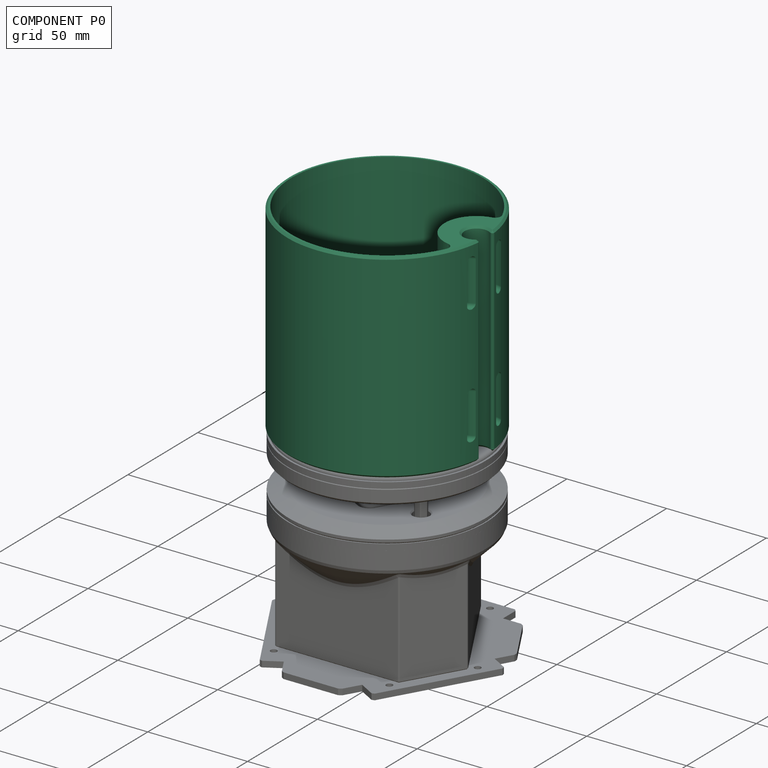
[diagram: component P0 — assembled]
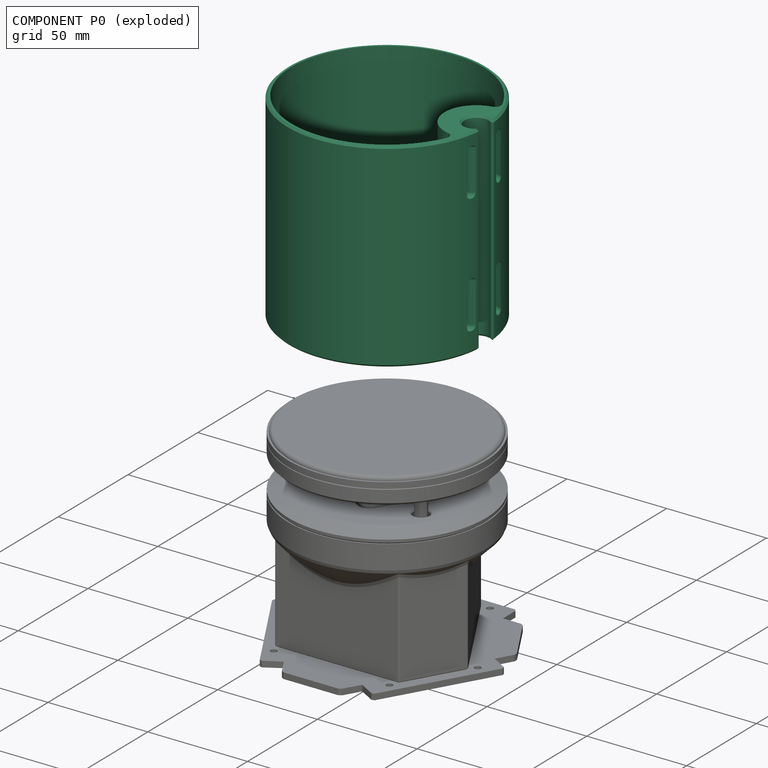
[diagram: component P0 — exploded]
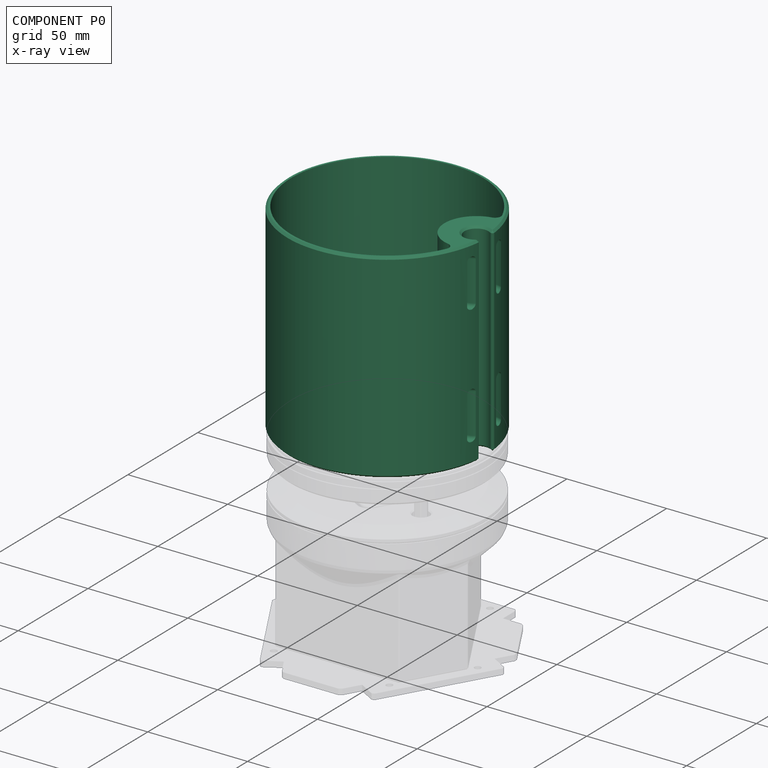
[diagram: component P0 — x-ray view]
COMPONENT P0 — recipe-attached ("DebugBaliseCable", modeled in this document).
Held by: resting contact with P1 (derived edge).
Construction recipe (the document's own serialized feature program — sketch geometry with constraints, then the solid features built on it; lengths are millimeters unless a unit is written):

FEATURE [Sketcher::SketchObject] Sketch071
  ArcFitTolerance = 1e-06
  AttachmentSupport = -> [XY_Plane034]
  ExternalBSplineMaxDegree = 5
  ExternalBSplineTolerance = 0.0001
  FixShape = 1
  FullyConstrained = true
  InternalTolerance = 1e-06
  InvalidShape = false
  MakeInternals = false
  MapMode = 5
  Support = -> [XY_Plane034]
  TreeRank = 768
  ValidateShape = false
  sketch-geometry (1):
    g0: Circle CenterX=0 CenterY=0 CenterZ=0 NormalX=0 NormalY=0 NormalZ=1 AngleXU=0 Radius=50
  constraints (2):
    c: Coincident(g0,g-1)
    c: Diameter(g0) = 100
FEATURE [PartDesign::Pad] Pad038
  AddSubType = 0
  AlongSketchNormal = false
  AutoTaperInnerAngle = true
  CheckUpToFaceLimits = true
  ClaimChildren = false
  Direction = (0,0,1)
  Fit = 0
  FitJoin = 0
  FixShape = 1
  InnerFit = 0
  InnerFitJoin = 0
  InvalidShape = false
  Length = 100
  Length2 = 10
  Linearize = true
  NewSolid = false
  Profile = -> Sketch071
  ReferenceAxis = -> Sketch071 [N_Axis]
  Refine = true
  Suppress = false
  TaperInnerAngle = 0
  TaperInnerAngleRev = 0
  TreeRank = 769
  Type = 0
  ValidateShape = true
  _ProfileBasedVersion = 1
FEATURE [Sketcher::SketchObject] Sketch072
  ArcFitTolerance = 1e-06
  AttachmentSupport = -> [XY_Plane034]
  ExternalBSplineMaxDegree = 5
  ExternalBSplineTolerance = 0.0001
  ExternalGeometry = -> [Pad038]
  FixShape = 1
  FullyConstrained = true
  InternalTolerance = 1e-06
  InvalidShape = false
  MakeInternals = false
  MapMode = 5
  Support = -> [XY_Plane034]
  TreeRank = 770
  ValidateShape = false
  sketch-geometry (3):
    g0: Circle CenterX=44.7138 CenterY=0 CenterZ=0 NormalX=0 NormalY=0 NormalZ=1 AngleXU=0 Radius=6
    g1: GeomPoint [constr] X=49.9099 Y=3 Z=0
    g2: GeomPoint [constr] X=49.9099 Y=-3 Z=0
  constraints (7):
    c: PointOnObject(g0,g-1)
    c: Diameter(g0) = 12
    c: PointOnObject(g1,g0)
    c: PointOnObject(g2,g0)
    c: PointOnObject(g1,g-3)
    c: PointOnObject(g2,g-3)
    c: DistanceY(g2,g1) = 6
FEATURE [PartDesign::Pocket] Pocket034
  AddSubType = 1
  AlongSketchNormal = false
  AutoTaperInnerAngle = true
  BaseFeature = -> Pad038
  CheckUpToFaceLimits = true
  ClaimChildren = false
  Direction = (0,0,-1)
  Fit = 0
  FitJoin = 0
  FixShape = 1
  InnerFit = 0
  InnerFitJoin = 0
  InvalidShape = false
  Length = 5
  Length2 = 10
  Linearize = true
  NewSolid = false
  Profile = -> Sketch072
  ReferenceAxis = -> Sketch072 [N_Axis]
  Refine = true
  Reversed = true
  Suppress = false
  TaperInnerAngle = 0
  TaperInnerAngleRev = 0
  TreeRank = 771
  Type = 1
  ValidateShape = true
  _ProfileBasedVersion = 1
  _Version = 1
FEATURE [PartDesign::Fillet] Fillet026
  AddSubType = 0
  Base = -> Pocket034 [Edge2,Edge4]
  BaseFeature = -> Pocket034
  FixShape = 1
  InvalidShape = false
  NewSolid = false
  Radius = 1
  Refine = true
  SupportTransform = false
  Suppress = false
  TreeRank = 772
  UseAllEdges = false
  ValidateShape = true
FEATURE [PartDesign::Line] DatumLine
  AttacherType = Attacher::AttachEngineLine
  AttachmentSupport = -> [Fillet026]
  FixShape = 1
  InvalidShape = false
  Length = 100
  MapMode = 19
  MinimumLength = 10
  Placement = pos=(44.7138,0,100) rot=(-0.884136,0.46723,0;3.14159rad)
  ResizeMode = 0
  Support = -> [Fillet026]
  TreeRank = 773
  ValidateShape = false
FEATURE [Sketcher::SketchObject] Sketch073
  ArcFitTolerance = 1e-06
  AttachmentSupport = -> [XZ_Plane034]
  ExternalBSplineMaxDegree = 5
  ExternalBSplineTolerance = 0.0001
  FixShape = 1
  FullyConstrained = true
  InternalTolerance = 1e-06
  InvalidShape = false
  MakeInternals = false
  MapMode = 5
  Placement = pos=(0,0,0) rot=(1,0,0;1.5708rad)
  Support = -> [XZ_Plane034]
  TreeRank = 774
  ValidateShape = false
  sketch-geometry (4):
    g0: ArcOfCircle CenterX=34 CenterY=92 CenterZ=0 NormalX=0 NormalY=0 NormalZ=1 AngleXU=0 Radius=2 StartAngle=1.4e-15 EndAngle=3.14159
    g1: ArcOfCircle CenterX=34 CenterY=72 CenterZ=0 NormalX=0 NormalY=0 NormalZ=1 AngleXU=0 Radius=2 StartAngle=3.14159 EndAngle=6.28319
    g2: LineSegment StartX=32 StartY=92 StartZ=0 EndX=32 EndY=72 EndZ=0
    g3: LineSegment StartX=36 StartY=72 StartZ=0 EndX=36 EndY=92 EndZ=0
  constraints (10):
    c: Tangent(g0,g2) = -1.5708
    c: Tangent(g2,g1) = -1.5708
    c: Tangent(g1,g3) = -1.5708
    c: Tangent(g3,g0) = -1.5708
    c: Equal(g0,g1)
    c: Vertical(g0,g1)
    c: DistanceY(g1,g0) = 20
    c: DistanceX(g0,g0) = 4
    c: DistanceX(g-1,g1) = 34
    c: DistanceY(g-1,g1) = 72
FEATURE [PartDesign::Groove] Groove
  AddSubType = 1
  Angle = 360
  Axis = (1e-16,1e-16,-1)
  Base = (44.7138,0,100)
  BaseFeature = -> Fillet026
  ClaimChildren = false
  Fit = 0
  FitJoin = 0
  FixShape = 1
  InnerFit = 0
  InnerFitJoin = 0
  InvalidShape = false
  Linearize = true
  NewSolid = false
  Profile = -> Sketch073
  ReferenceAxis = -> DatumLine
  Refine = true
  Suppress = false
  TreeRank = 775
  ValidateShape = true
  _ProfileBasedVersion = 1
FEATURE [PartDesign::LinearPattern] LinearPattern
  AddSubType = 0
  BaseFeature = -> Groove
  CopyShape = false
  Direction = -> Sketch073 [V_Axis]
  FixShape = 1
  InvalidShape = false
  Length = 60
  NewSolid = false
  Occurrences = 2
  OriginalSubs = -> [Groove]
  Originals = -> [Groove]
  ParallelTransform = true
  Refine = true
  Reversed = true
  SubTransform = true
  Suppress = false
  TreeRank = 776
  ValidateShape = true
  _Version = 3
FEATURE [Sketcher::SketchObject] Sketch074
  ArcFitTolerance = 1e-06
  AttachmentSupport = -> [LinearPattern]
  ExternalBSplineMaxDegree = 5
  ExternalBSplineTolerance = 0.0001
  ExternalGeometry = -> [LinearPattern]
  FixShape = 1
  FullyConstrained = true
  InternalTolerance = 1e-06
  InvalidShape = false
  MakeInternals = false
  MapMode = 5
  Placement = pos=(0,0,100) rot=(0,0,1;0rad)
  Support = -> [LinearPattern]
  TreeRank = 777
  ValidateShape = false
  sketch-geometry (2):
    g0: ArcOfCircle CenterX=0 CenterY=0 CenterZ=0 NormalX=0 NormalY=0 NormalZ=1 AngleXU=0 Radius=48 StartAngle=0.339632 EndAngle=5.94355
    g1: ArcOfCircle CenterX=44.7138 CenterY=0 CenterZ=0 NormalX=0 NormalY=0 NormalZ=1 AngleXU=0 Radius=16 StartAngle=1.53677 EndAngle=4.74642
  constraints (6):
    c: Coincident(g0,g-1)
    c: Coincident(g1,g0)
    c: Coincident(g1,g0)
    c: Coincident(g1,g-3)
    c: Radius(g1) = 16
    c: Radius(g0) = 48
FEATURE [PartDesign::Pocket] Pocket035
  AddSubType = 1
  AlongSketchNormal = false
  AutoTaperInnerAngle = true
  BaseFeature = -> LinearPattern
  CheckUpToFaceLimits = true
  ClaimChildren = false
  Direction = (0,0,-1)
  Fit = 0
  FitJoin = 0
  FixShape = 1
  InnerFit = 0
  InnerFitJoin = 0
  InvalidShape = false
  Length = 95
  Length2 = 10
  Linearize = true
  NewSolid = false
  Profile = -> Sketch074
  ReferenceAxis = -> Sketch074 [N_Axis]
  Refine = true
  Suppress = false
  TaperInnerAngle = 0
  TaperInnerAngleRev = 0
  TreeRank = 778
  Type = 0
  ValidateShape = true
  _ProfileBasedVersion = 1
  _Version = 1
FEATURE [PartDesign::Fillet] Fillet027
  AddSubType = 0
  Base = -> Pocket035 [Edge52,Edge51]
  BaseFeature = -> Pocket035
  FixShape = 1
  InvalidShape = false
  NewSolid = false
  Radius = 3
  Refine = true
  SupportTransform = false
  Suppress = false
  TreeRank = 779
  UseAllEdges = false
  ValidateShape = true
FEATURE [PartDesign::Fillet] Fillet028
  AddSubType = 0
  Base = -> Fillet027 [Edge11]
  BaseFeature = -> Fillet027
  FixShape = 1
  InvalidShape = false
  NewSolid = false
  Radius = 2
  Refine = true
  SupportTransform = false
  Suppress = false
  TreeRank = 780
  UseAllEdges = false
  ValidateShape = true
FEATURE [PartDesign::Chamfer] Chamfer010
  AddSubType = 0
  Angle = 45
  Base = -> Fillet028 [Edge32]
  BaseFeature = -> Fillet028
  ChamferType = 0
  FixShape = 1
  FlipDirection = false
  InvalidShape = false
  NewSolid = false
  Refine = true
  Size = 1
  Size2 = 1
  SupportTransform = false
  Suppress = false
  TreeRank = 781
  UseAllEdges = false
  ValidateShape = true
FEATURE [PartDesign::Chamfer] Chamfer011
  AddSubType = 0
  Angle = 45
  Base = -> Chamfer010 [Edge3]
  BaseFeature = -> Chamfer010
  ChamferType = 0
  FixShape = 1
  FlipDirection = false
  InvalidShape = false
  NewSolid = false
  Refine = true
  Size = 1
  Size2 = 1
  SupportTransform = false
  Suppress = false
  TreeRank = 782
  UseAllEdges = false
  ValidateShape = true
FEATURE [PartDesign::Body] Body032  label="DebugBaliseCable"
  AutoGroupSolids = false
  ClaimAllChildren = false
  ExportMode = 0
  FixShape = 1
  Group = -> [Sketch071,Pad038,Sketch072,Pocket034,Fillet026,DatumLine,Sketch073,Groove,LinearPattern,Sketch074,Pocket035,Fillet027,Fillet028,Chamfer010,Chamfer011]
  InvalidShape = false
  Origin = -> Origin058
  Placement = pos=(0,0,97) rot=(0,0,1;0rad)
  SingleSolid = true
  Tip = -> Chamfer011
  TreeRank = 783
  ValidateShape = false
  _ExportChildren = -> [Pad038,Pocket034,Fillet026,DatumLine,Groove,LinearPattern,Pocket035,Fillet027,Fillet028,Chamfer010,Chamfer011]
  _GroupVersion = 1
PROVENANCE & LICENSES
Assembly and component geometry: a FreeCAD (.FCStd) document from a public repository crawl; components, placements and joints were extracted with FreeCAD and each solid tessellated.
Construction recipes: the document's own serialized feature recipes (and, for linked parts, the recipes of companion documents from the same project).
License: as declared in the source repository (recorded in the dataset sidecar).
Joints: native FreeCAD joints and A2plus constraints are mapped to standard mate types; edges marked 'derived from contact' connect touching components and are measured from the geometry, not modeled.
Verification: 2 of this assembly's 2 components carry a construction recipe (2 from this document itself); the rest are geometry-only. Every component's tessellation passed the extraction mesh gates (mesh-volume checksum against the B-rep where available, bounding-box inflation <= 2%).
Renders: orthographic iso camera (az 35 / el 25); the floor grid conveys scale (grid pitch printed in each image; no ruler). In the exploded view each component is displaced by its stored offset vector: the offsets alone carry the explosion direction (mate normal/axis signs are not orientation cues and do not encode it), and separation distances are assigned per mate-chain, not proportionally to assembly-order depth.
